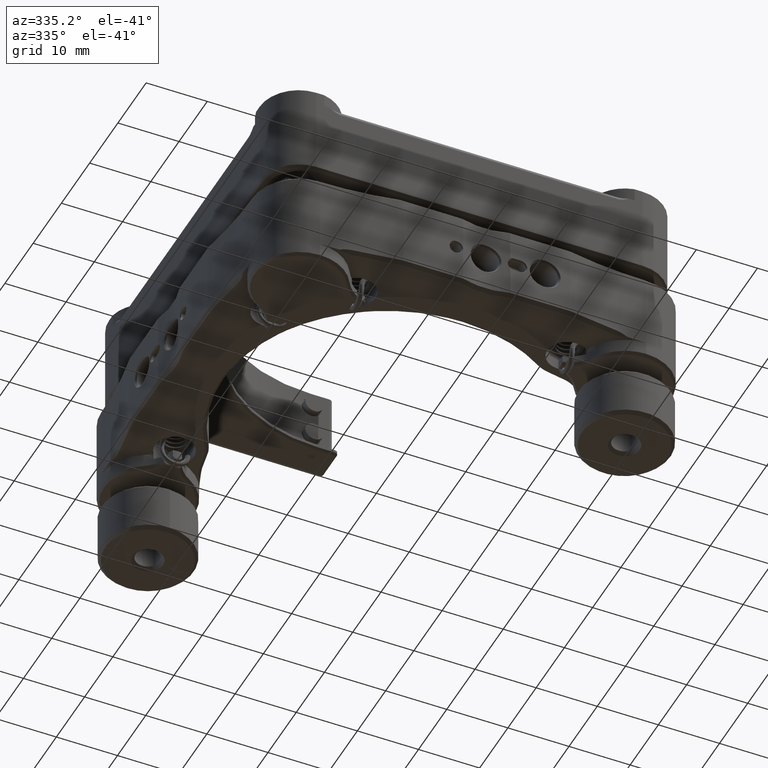
[diagram: clean part render]
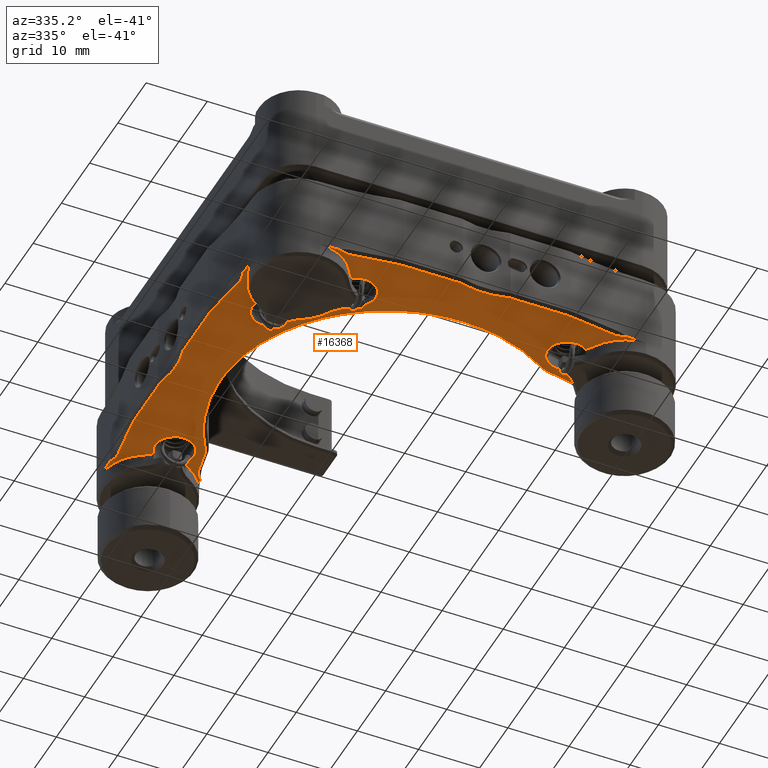
[diagram: same view with one face highlighted and labeled with its STEP entity id]
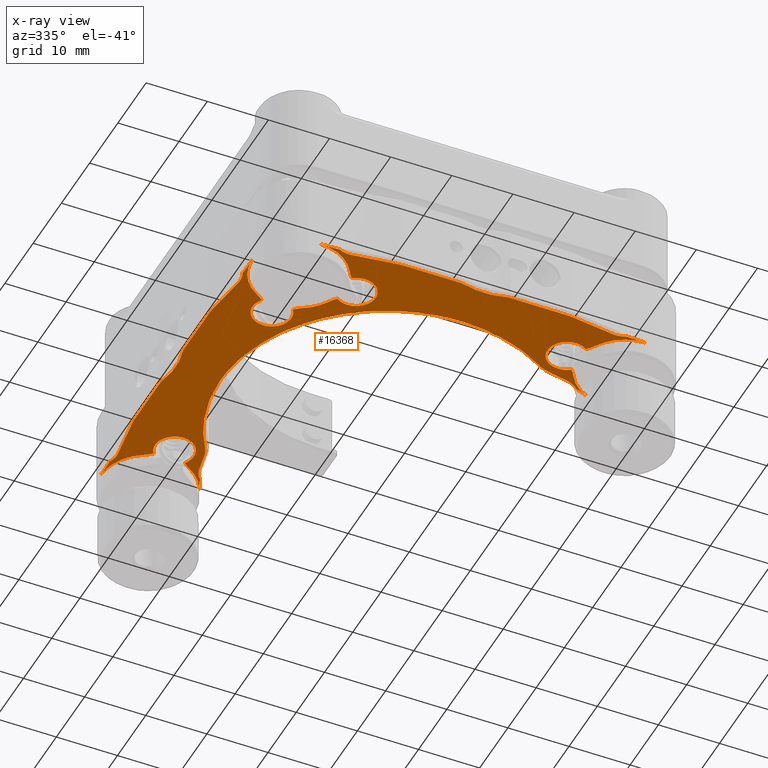
[diagram: x-ray of the same camera — body ghosted, the highlighted face saturated]
A machine part, auxiliary view. The second image highlights one B-rep face of the part: STEP entity #16368.
The next image is the same camera in x-ray: the body ghosted, the highlighted face saturated — about 0% of this face is hidden behind the body in this view.
In plain terms, the highlighted planar face has unit normal (0, 0, -1).
Its self-contained STEP definition (entity closure, byte-faithful):
#22 = CARTESIAN_POINT ( 'NONE',  ( 29.20932605756291522, 5.607159035293775240, 57.64502420018478546 ) ) ;
#63 = ORIENTED_EDGE ( 'NONE', *, *, #18630, .F. ) ;
#174 = ORIENTED_EDGE ( 'NONE', *, *, #26009, .F. ) ;
#183 = CARTESIAN_POINT ( 'NONE',  ( 1.247253498798252869, 59.76045141439296060, 57.64502420018478546 ) ) ;
#191 = CARTESIAN_POINT ( 'NONE',  ( 18.42267675560576379, 14.35657661658440176, 57.64502420018445150 ) ) ;
#210 = CARTESIAN_POINT ( 'NONE',  ( 41.80860765581387994, 18.46373870427559183, 57.64502420018547468 ) ) ;
#220 = CARTESIAN_POINT ( 'NONE',  ( 2.271709062368655108, 26.31930380702672068, 57.64502420018387596 ) ) ;
#249 = CARTESIAN_POINT ( 'NONE',  ( 23.01519654462548203, 13.55479831892947296, 57.64502420018444440 ) ) ;
#332 = ORIENTED_EDGE ( 'NONE', *, *, #6670, .F. ) ;
#364 = AXIS2_PLACEMENT_3D ( 'NONE', #5480, #23414, #21086 ) ;
#382 = VERTEX_POINT ( 'NONE', #651 ) ;
#409 = DIRECTION ( 'NONE',  ( 1.000000000000000000, 5.463695987328818315E-15, 0.000000000000000000 ) ) ;
#411 = CIRCLE ( 'NONE', #16769, 7.619999999999994778 ) ;
#422 = B_SPLINE_CURVE_WITH_KNOTS ( 'NONE', 3,
 ( #20810, #3286, #14260, #787 ),
 .UNSPECIFIED., .F., .F.,
 ( 4, 4 ),
 ( 0.000000000000000000, 1.000000000000000000 ),
 .UNSPECIFIED. ) ;
#502 = CARTESIAN_POINT ( 'NONE',  ( 41.15188617640507118, 18.29495510135035730, 57.64502420018547468 ) ) ;
#515 = ORIENTED_EDGE ( 'NONE', *, *, #18297, .F. ) ;
#566 = ORIENTED_EDGE ( 'NONE', *, *, #7156, .F. ) ;
#579 = ORIENTED_EDGE ( 'NONE', *, *, #19916, .T. ) ;
#594 = ORIENTED_EDGE ( 'NONE', *, *, #14093, .F. ) ;
#608 = CARTESIAN_POINT ( 'NONE',  ( 11.06662614743122042, 17.52438672522157859, 57.64502420018457940 ) ) ;
#610 = CARTESIAN_POINT ( 'NONE',  ( 6.159207016790204214, 21.41188470218266460, 57.64502420018469309 ) ) ;
#641 = CARTESIAN_POINT ( 'NONE',  ( 12.45368231089481625, 16.72019954103432937, 57.64502420018383333 ) ) ;
#651 = CARTESIAN_POINT ( 'NONE',  ( -0.8961010533956003110, 33.67535443061053968, 57.64502420018387596 ) ) ;
#671 = DIRECTION ( 'NONE',  ( -0.000000000000000000, -0.000000000000000000, 1.000000000000000000 ) ) ;
#738 = AXIS2_PLACEMENT_3D ( 'NONE', #21019, #25830, #28187 ) ;
#757 = EDGE_CURVE ( 'NONE', #27535, #23636, #26119, .T. ) ;
#787 = CARTESIAN_POINT ( 'NONE',  ( -0.8961010533956003110, 33.67535443061053968, 57.64502420018387596 ) ) ;
#839 = VERTEX_POINT ( 'NONE', #1777 ) ;
#850 = CARTESIAN_POINT ( 'NONE',  ( -1.800469016123518173, 40.71486606327052016, 57.64502420018478546 ) ) ;
#872 = VERTEX_POINT ( 'NONE', #23677 ) ;
#885 = VERTEX_POINT ( 'NONE', #8221 ) ;
#919 = CARTESIAN_POINT ( 'NONE',  ( -9.666593367183981655, 36.69342783072483627, 57.64502420018481388 ) ) ;
#920 = CARTESIAN_POINT ( 'NONE',  ( -8.609718291053971129, 19.12635990210234382, 57.64502420018481388 ) ) ;
#953 = ORIENTED_EDGE ( 'NONE', *, *, #24846, .T. ) ;
#1015 = VERTEX_POINT ( 'NONE', #26118 ) ;
#1042 = CARTESIAN_POINT ( 'NONE',  ( 11.07236084597689185, 17.52083115715991113, 57.64502420018457940 ) ) ;
#1045 = ORIENTED_EDGE ( 'NONE', *, *, #27636, .T. ) ;
#1051 = CARTESIAN_POINT ( 'NONE',  ( 0.1792902153727529702, 30.31354821920911746, 57.64502420018480677 ) ) ;
#1062 = ORIENTED_EDGE ( 'NONE', *, *, #19610, .F. ) ;
#1066 = CARTESIAN_POINT ( 'NONE',  ( -9.085511657690688025, 41.04110487605755253, 57.64502420018477835 ) ) ;
#1107 = CIRCLE ( 'NONE', #17453, 64.13500000000001933 ) ;
#1148 = ORIENTED_EDGE ( 'NONE', *, *, #26817, .F. ) ;
#1365 = CARTESIAN_POINT ( 'NONE',  ( -8.748839351660746999, 20.71804460705886797, 57.64502420018482098 ) ) ;
#1380 = VERTEX_POINT ( 'NONE', #5510 ) ;
#1385 = LINE ( 'NONE', #28128, #8686 ) ;
#1390 = CIRCLE ( 'NONE', #15862, 6.476999999999996760 ) ;
#1458 = DIRECTION ( 'NONE',  ( 0.000000000000000000, 0.000000000000000000, 1.000000000000000000 ) ) ;
#1532 = DIRECTION ( 'NONE',  ( -1.000000000000000000, 7.328974598802201501E-16, 0.000000000000000000 ) ) ;
#1568 = B_SPLINE_CURVE_WITH_KNOTS ( 'NONE', 3,
 ( #6817, #22441, #2438, #17933, #11206, #19974, #11351, #17639, #20120 ),
 .UNSPECIFIED., .F., .F.,
 ( 4, 1, 1, 1, 1, 1, 4 ),
 ( 0.7340110189129528395, 0.7692993351809461755, 0.8193335055059760563, 0.8675875624795856833, 0.9138011198508414479, 0.9579550069056105288, 1.000000000000000000 ),
 .UNSPECIFIED. ) ;
#1574 = CIRCLE ( 'NONE', #12775, 3.175000000000001155 ) ;
#1585 = CARTESIAN_POINT ( 'NONE',  ( 20.09387499736017446, 13.97012803118310664, 57.64502420018444440 ) ) ;
#1632 = CARTESIAN_POINT ( 'NONE',  ( -9.651123059185275466, 44.48221405318272303, 57.64502420018478546 ) ) ;
#1712 = EDGE_CURVE ( 'NONE', #17783, #26576, #18417, .T. ) ;
#1714 = CARTESIAN_POINT ( 'NONE',  ( -3.834115845010154455, 21.49804157573462149, 57.64502420018478546 ) ) ;
#1715 = CARTESIAN_POINT ( 'NONE',  ( -9.650481331953596253, 26.68412962258802423, 57.64502420018480677 ) ) ;
#1716 = VERTEX_POINT ( 'NONE', #16530 ) ;
#1730 = LINE ( 'NONE', #15457, #6957 ) ;
#1731 = AXIS2_PLACEMENT_3D ( 'NONE', #15867, #11345, #18366 ) ;
#1777 = CARTESIAN_POINT ( 'NONE',  ( 5.320739594792300409, 17.74304684036228608, 57.64502420018478546 ) ) ;
#1782 = CARTESIAN_POINT ( 'NONE',  ( 8.394457792282477016, 6.124222950984907321, 57.64502420018481388 ) ) ;
#1803 = AXIS2_PLACEMENT_3D ( 'NONE', #23443, #18812, #7693 ) ;
#1806 = CARTESIAN_POINT ( 'NONE',  ( 44.50777374622325766, 16.49993116696799333, 57.64502420018478546 ) ) ;
#1875 = EDGE_CURVE ( 'NONE', #5456, #6064, #19466, .T. ) ;
#1923 = DIRECTION ( 'NONE',  ( -0.000000000000000000, -0.000000000000000000, -1.000000000000000000 ) ) ;
#1927 = CARTESIAN_POINT ( 'NONE',  ( -8.609147041904556374, 62.13926204596009484, 57.64502420018478546 ) ) ;
#1949 = CARTESIAN_POINT ( 'NONE',  ( 29.40470555519195983, 5.579862652619775432, 57.64502420018479256 ) ) ;
#1995 = DIRECTION ( 'NONE',  ( 2.931589839520865612E-15, -1.000000000000000000, 0.000000000000000000 ) ) ;
#2046 = CARTESIAN_POINT ( 'NONE',  ( 1.480533270574447391, 27.68231273084641941, 57.64502420018388307 ) ) ;
#2058 = CARTESIAN_POINT ( 'NONE',  ( 3.829872058320898276, 60.38717263593201068, 57.64502420018502704 ) ) ;
#2060 = CARTESIAN_POINT ( 'NONE',  ( -9.299798497048646695, 56.51821258099698753, 57.64502420018479256 ) ) ;
#2076 = ORIENTED_EDGE ( 'NONE', *, *, #2599, .F. ) ;
#2077 = EDGE_CURVE ( 'NONE', #7043, #23669, #3028, .T. ) ;
#2098 = CARTESIAN_POINT ( 'NONE',  ( -1.800469016123518173, 40.71486606327052016, 57.64502420018478546 ) ) ;
#2156 = ORIENTED_EDGE ( 'NONE', *, *, #19607, .T. ) ;
#2225 = CARTESIAN_POINT ( 'NONE',  ( 29.41474904390709355, 5.579793643104881795, 57.64502420018478546 ) ) ;
#2409 = DIRECTION ( 'NONE',  ( -2.276539994720218856E-16, 1.000000000000000000, 0.000000000000000000 ) ) ;
#2421 = VERTEX_POINT ( 'NONE', #12492 ) ;
#2438 = CARTESIAN_POINT ( 'NONE',  ( 27.80663063215838093, 13.52098053113159182, 57.64502420018460782 ) ) ;
#2554 = DIRECTION ( 'NONE',  ( 1.000000000000000000, 0.000000000000000000, 0.000000000000000000 ) ) ;
#2581 = EDGE_CURVE ( 'NONE', #5305, #5031, #4965, .T. ) ;
#2599 = EDGE_CURVE ( 'NONE', #11189, #12068, #1385, .T. ) ;
#2608 = CARTESIAN_POINT ( 'NONE',  ( 38.88250447185101422, 5.579793643104853373, 57.64502420018478546 ) ) ;
#2623 = CIRCLE ( 'NONE', #3084, 3.175000000000004263 ) ;
#2629 = DIRECTION ( 'NONE',  ( -0.000000000000000000, -0.000000000000000000, -1.000000000000000000 ) ) ;
#2669 = EDGE_CURVE ( 'NONE', #22675, #21068, #28859, .T. ) ;
#2670 = VECTOR ( 'NONE', #1995, 1000.000000000000000 ) ;
#2676 = CARTESIAN_POINT ( 'NONE',  ( 29.41474904390709355, 5.579793643104881795, 57.64502420018478546 ) ) ;
#2698 = AXIS2_PLACEMENT_3D ( 'NONE', #26798, #11901, #4760 ) ;
#2706 = CIRCLE ( 'NONE', #10633, 7.619999999999993001 ) ;
#2720 = DIRECTION ( 'NONE',  ( -0.000000000000000000, -0.000000000000000000, -1.000000000000000000 ) ) ;
#2722 = ORIENTED_EDGE ( 'NONE', *, *, #757, .F. ) ;
#2776 = CARTESIAN_POINT ( 'NONE',  ( -9.657136695828894446, 54.50535908619860237, 57.64502420018481388 ) ) ;
#2783 = AXIS2_PLACEMENT_3D ( 'NONE', #22369, #11287, #22519 ) ;
#2784 = CARTESIAN_POINT ( 'NONE',  ( -9.672884025064641733, 27.13046265874715246, 57.64502420018481388 ) ) ;
#2793 = CIRCLE ( 'NONE', #7936, 64.13500000000004775 ) ;
#2876 = VERTEX_POINT ( 'NONE', #22389 ) ;
#2891 = VERTEX_POINT ( 'NONE', #11304 ) ;
#2925 = CARTESIAN_POINT ( 'NONE',  ( 52.04656882689406672, -57.79575350493623631, 57.64502420018478546 ) ) ;
#2974 = B_SPLINE_CURVE_WITH_KNOTS ( 'NONE', 3,
 ( #16453, #15881, #25353, #5372, #24769, #14278, #3156, #12069 ),
 .UNSPECIFIED., .F., .F.,
 ( 4, 1, 1, 1, 1, 4 ),
 ( 0.000000000000000000, 0.2198872060826652097, 0.4399635429378297991, 0.6267342505430961719, 0.8134432903046857621, 1.000000000000000000 ),
 .UNSPECIFIED. ) ;
#2979 = CARTESIAN_POINT ( 'NONE',  ( 18.41022598047356240, 14.35987692840729224, 57.64502420018445861 ) ) ;
#3028 = B_SPLINE_CURVE_WITH_KNOTS ( 'NONE', 3,
 ( #5948, #5662, #23597, #23746, #12666 ),
 .UNSPECIFIED., .F., .F.,
 ( 4, 1, 4 ),
 ( 0.2680423317993361754, 0.2824041856130955486, 0.3080622139402893200 ),
 .UNSPECIFIED. ) ;
#3050 = CARTESIAN_POINT ( 'NONE',  ( 23.01519654462548203, 13.55479831892947296, 57.64502420018444440 ) ) ;
#3062 = CARTESIAN_POINT ( 'NONE',  ( -9.671804099582503866, 54.25477390716874737, 57.64502420018478546 ) ) ;
#3064 = CARTESIAN_POINT ( 'NONE',  ( 38.88250447185101422, 5.579793643104853373, 57.64502420018478546 ) ) ;
#3084 = AXIS2_PLACEMENT_3D ( 'NONE', #6091, #21693, #17041 ) ;
#3090 = CARTESIAN_POINT ( 'NONE',  ( 45.13449496776240721, 19.08254972649088543, 57.64502420018547468 ) ) ;
#3100 = EDGE_CURVE ( 'NONE', #13522, #11638, #21753, .T. ) ;
#3116 = CARTESIAN_POINT ( 'NONE',  ( 45.43239805899587225, 10.17544614976530148, 57.64502420018478546 ) ) ;
#3122 = EDGE_CURVE ( 'NONE', #9014, #26029, #16955, .T. ) ;
#3127 = CARTESIAN_POINT ( 'NONE',  ( -9.128454717184634859, 23.64713546045220838, 57.64502420018481388 ) ) ;
#3134 = ORIENTED_EDGE ( 'NONE', *, *, #9223, .T. ) ;
#3141 = EDGE_CURVE ( 'NONE', #2876, #20452, #22521, .T. ) ;
#3156 = CARTESIAN_POINT ( 'NONE',  ( 3.268258257345075357, 57.47588113324250969, 57.64502420018502704 ) ) ;
#3193 = CARTESIAN_POINT ( 'NONE',  ( 7.523560805770546089, 59.45295454738731422, 57.64502420018478546 ) ) ;
#3232 = CARTESIAN_POINT ( 'NONE',  ( 6.582132801033512948, 20.98891514301634231, 57.64502420018383333 ) ) ;
#3268 = CARTESIAN_POINT ( 'NONE',  ( -9.256243939884109651, 38.46426263397331979, 57.64502420018476414 ) ) ;
#3282 = CARTESIAN_POINT ( 'NONE',  ( 18.17183707876180065, 32.95957636818623371, 57.64502420018478546 ) ) ;
#3286 = CARTESIAN_POINT ( 'NONE',  ( -1.171222304169340145, 34.78500465731856650, 57.64502420018389728 ) ) ;
#3322 = CIRCLE ( 'NONE', #12176, 6.476999999999996760 ) ;
#3416 = CARTESIAN_POINT ( 'NONE',  ( -9.412998950299668266, 43.61847049971955670, 57.64502420018479967 ) ) ;
#3425 = DIRECTION ( 'NONE',  ( 0.000000000000000000, 0.000000000000000000, 1.000000000000000000 ) ) ;
#3435 = CARTESIAN_POINT ( 'NONE',  ( 10.94278474750576180, 6.959215856261566024, 57.64502420018478546 ) ) ;
#3495 = VERTEX_POINT ( 'NONE', #27475 ) ;
#3562 = CARTESIAN_POINT ( 'NONE',  ( -9.565848064803070372, 37.08518600192545023, 57.64502420018482098 ) ) ;
#3587 = CARTESIAN_POINT ( 'NONE',  ( 3.242196827740507548, 57.28081045150592843, 57.64502420018502704 ) ) ;
#3591 = VERTEX_POINT ( 'NONE', #28206 ) ;
#3603 = ORIENTED_EDGE ( 'NONE', *, *, #26159, .T. ) ;
#3648 = VERTEX_POINT ( 'NONE', #3116 ) ;
#3790 = CARTESIAN_POINT ( 'NONE',  ( 20.09334009938887178, 13.97023407075234580, 57.64502420018445861 ) ) ;
#3831 = CARTESIAN_POINT ( 'NONE',  ( -9.670894157486623399, 44.60673613845184349, 57.64502420018478546 ) ) ;
#3842 = VERTEX_POINT ( 'NONE', #24809 ) ;
#3878 = CARTESIAN_POINT ( 'NONE',  ( -4.468431173105932075, 23.40212833792560332, 57.64502420018478546 ) ) ;
#3943 = B_SPLINE_CURVE_WITH_KNOTS ( 'NONE', 3,
 ( #9988, #12180, #3416, #7952, #7515, #1066, #5336, #5613, #3268, #14679, #3562, #8094 ),
 .UNSPECIFIED., .F., .F.,
 ( 4, 1, 1, 1, 1, 1, 1, 1, 1, 4 ),
 ( 0.000000000000000000, 0.1106101391436129511, 0.2226035433377166473, 0.3352617313901610774, 0.4478952688161267348, 0.5601324153085953661, 0.6707768710217467678, 0.7814105279585334962, 0.8913786638332005241, 1.000000000000000000 ),
 .UNSPECIFIED. ) ;
#3950 = CARTESIAN_POINT ( 'NONE',  ( 52.04656882689405961, 13.95924649506379644, 57.64502420018478546 ) ) ;
#3957 = B_SPLINE_CURVE_WITH_KNOTS ( 'NONE', 3,
 ( #3050, #11967, #11685, #18117, #14314 ),
 .UNSPECIFIED., .F., .F.,
 ( 4, 1, 4 ),
 ( 0.6919377860668559643, 0.7175958143869002326, 0.7319576682001913692 ),
 .UNSPECIFIED. ) ;
#3981 = CARTESIAN_POINT ( 'NONE',  ( -9.067366065458656976, 58.01751600416974952, 57.64502420018478546 ) ) ;
#3991 = B_SPLINE_CURVE_WITH_KNOTS ( 'NONE', 3,
 ( #27447, #18413, #20725, #5257, #9347, #25385, #14171, #9630, #11679 ),
 .UNSPECIFIED., .F., .F.,
 ( 4, 1, 1, 1, 1, 1, 4 ),
 ( 0.000000000000000000, 0.1868774987790507991, 0.3734622291714627673, 0.5599289493426382602, 0.7064719893704430875, 0.8531339998458387086, 1.000000000000000000 ),
 .UNSPECIFIED. ) ;
#4037 = DIRECTION ( 'NONE',  ( 0.000000000000000000, 0.000000000000000000, 1.000000000000000000 ) ) ;
#4041 = VERTEX_POINT ( 'NONE', #7442 ) ;
#4048 = VERTEX_POINT ( 'NONE', #4964 ) ;
#4075 = ORIENTED_EDGE ( 'NONE', *, *, #1712, .F. ) ;
#4120 = CARTESIAN_POINT ( 'NONE',  ( 21.40912200082250649, 5.582598167730753680, 57.64502420018481388 ) ) ;
#4171 = CARTESIAN_POINT ( 'NONE',  ( 11.07236084597689185, 17.52083115715991113, 57.64502420018457940 ) ) ;
#4179 = CARTESIAN_POINT ( 'NONE',  ( -8.992042025902165392, 17.13371250086107622, 57.64502420018478546 ) ) ;
#4233 = CARTESIAN_POINT ( 'NONE',  ( -1.293431173105950904, 57.85636465220196101, 57.64502420018478546 ) ) ;
#4257 = B_SPLINE_CURVE_WITH_KNOTS ( 'NONE', 3,
 ( #8354, #25869, #23817, #3831, #21629, #21054, #15069, #1632, #10396, #5739 ),
 .UNSPECIFIED., .F., .F.,
 ( 4, 1, 1, 1, 1, 1, 1, 4 ),
 ( 0.000000000000000000, 0.1409893237882775541, 0.2810121681523586323, 0.4204454693402903120, 0.5596646080508427268, 0.7056909311085819425, 0.8523249852666776594, 1.000000000000000000 ),
 .UNSPECIFIED. ) ;
#4266 = CARTESIAN_POINT ( 'NONE',  ( 21.50204822884585099, 5.596693155254232721, 57.64502420018481388 ) ) ;
#4269 = CARTESIAN_POINT ( 'NONE',  ( 5.465366938889159698, 6.503838316508810280, 57.64502420018480677 ) ) ;
#4288 = ORIENTED_EDGE ( 'NONE', *, *, #13541, .F. ) ;
#4295 = ORIENTED_EDGE ( 'NONE', *, *, #8871, .F. ) ;
#4301 = CARTESIAN_POINT ( 'NONE',  ( 20.19019959098566019, 13.95091022806955827, 57.64502420018475704 ) ) ;
#4322 = ORIENTED_EDGE ( 'NONE', *, *, #24009, .F. ) ;
#4388 = DIRECTION ( 'NONE',  ( 1.000000000000000000, 0.000000000000000000, 0.000000000000000000 ) ) ;
#4446 = DIRECTION ( 'NONE',  ( 1.000000000000000000, 0.000000000000000000, 0.000000000000000000 ) ) ;
#4481 = LINE ( 'NONE', #11055, #2670 ) ;
#4561 = EDGE_CURVE ( 'NONE', #18170, #4041, #2974, .T. ) ;
#4562 = B_SPLINE_CURVE_WITH_KNOTS ( 'NONE', 3,
 ( #13926, #608, #9680, #1042 ),
 .UNSPECIFIED., .F., .F.,
 ( 4, 4 ),
 ( 0.4739071774692080186, 0.4740807235350941173 ),
 .UNSPECIFIED. ) ;
#4576 = CARTESIAN_POINT ( 'NONE',  ( -0.8961010533956003110, 33.67535443061053968, 57.64502420018387596 ) ) ;
#4592 = AXIS2_PLACEMENT_3D ( 'NONE', #17470, #4037, #28726 ) ;
#4669 = CARTESIAN_POINT ( 'NONE',  ( 19.53175575290984867, 14.08159192644378166, 57.64502420018478546 ) ) ;
#4670 = CARTESIAN_POINT ( 'NONE',  ( 1.247253498798294613, 21.49804157573462149, 57.64502420018478546 ) ) ;
#4706 = DIRECTION ( 'NONE',  ( -0.000000000000000000, -0.000000000000000000, -1.000000000000000000 ) ) ;
#4760 = DIRECTION ( 'NONE',  ( 1.000000000000000000, 0.000000000000000000, 0.000000000000000000 ) ) ;
#4796 = CARTESIAN_POINT ( 'NONE',  ( -9.593823589727188406, 54.94774637175455467, 57.64502420018478546 ) ) ;
#4814 = CARTESIAN_POINT ( 'NONE',  ( -3.834115845010161561, 59.76045141439295350, 57.64502420018478546 ) ) ;
#4842 = CARTESIAN_POINT ( 'NONE',  ( -9.642387603106660876, 54.64659585221734517, 57.64502420018465045 ) ) ;
#4877 = VERTEX_POINT ( 'NONE', #9425 ) ;
#4896 = DIRECTION ( 'NONE',  ( 0.1592391472459123158, 0.9872400386858277699, 4.917326388595624016E-14 ) ) ;
#4941 = CARTESIAN_POINT ( 'NONE',  ( 6.119117317128018207, 21.45203299883538506, 57.64502420018469309 ) ) ;
#4956 = CIRCLE ( 'NONE', #738, 3.175000000000001155 ) ;
#4964 = CARTESIAN_POINT ( 'NONE',  ( 4.900258537467380826, 62.21599367290031779, 57.64502420018501994 ) ) ;
#4965 = CIRCLE ( 'NONE', #27338, 6.476999999999996760 ) ;
#4989 = CARTESIAN_POINT ( 'NONE',  ( 47.19090729381271387, 2.845703936856604166, 57.64502420018478546 ) ) ;
#5031 = VERTEX_POINT ( 'NONE', #21083 ) ;
#5033 = B_SPLINE_CURVE_WITH_KNOTS ( 'NONE', 3,
 ( #5660, #14581, #23596, #5947, #10600 ),
 .UNSPECIFIED., .F., .F.,
 ( 4, 1, 4 ),
 ( 0.000000000000000000, 0.03659911153395067201, 1.000000000000000000 ),
 .UNSPECIFIED. ) ;
#5104 = EDGE_CURVE ( 'NONE', #22520, #1380, #26231, .T. ) ;
#5125 = B_SPLINE_CURVE_WITH_KNOTS ( 'NONE', 3,
 ( #13720, #18253, #27149, #7140, #1715, #12683, #25669, #10183, #19128 ),
 .UNSPECIFIED., .F., .F.,
 ( 4, 1, 1, 1, 1, 1, 4 ),
 ( 0.000000000000000000, 0.1868774987790021713, 0.3734622291713883824, 0.5599289493427320741, 0.7064719893703814702, 0.8531339998458348228, 1.000000000000000000 ),
 .UNSPECIFIED. ) ;
#5257 = CARTESIAN_POINT ( 'NONE',  ( 11.57290411365522154, 5.589680487915936524, 57.64502420018481388 ) ) ;
#5276 = CARTESIAN_POINT ( 'NONE',  ( 39.00209623899901601, 5.580873568587163547, 57.64502420018478546 ) ) ;
#5280 = DIRECTION ( 'NONE',  ( -1.000000000000000000, 0.000000000000000000, 0.000000000000000000 ) ) ;
#5305 = VERTEX_POINT ( 'NONE', #24842 ) ;
#5336 = CARTESIAN_POINT ( 'NONE',  ( -9.087351413154882707, 40.16723961050244185, 57.64502420018475704 ) ) ;
#5372 = CARTESIAN_POINT ( 'NONE',  ( 3.529182994803266471, 59.06424076650954191, 57.64502420018502704 ) ) ;
#5380 = B_SPLINE_CURVE_WITH_KNOTS ( 'NONE', 3,
 ( #18725, #11844, #20742, #18571, #7460, #25260, #5276, #27613, #3064 ),
 .UNSPECIFIED., .F., .F.,
 ( 4, 1, 1, 1, 1, 1, 4 ),
 ( 0.000000000000000000, 0.1868774987789966757, 0.3734622291714109754, 0.5599289493427193065, 0.7064719893703580444, 0.8531339998458139506, 1.000000000000000000 ),
 .UNSPECIFIED. ) ;
#5418 = CARTESIAN_POINT ( 'NONE',  ( -9.672523883164220848, 54.17506452729737276, 57.64502420018478546 ) ) ;
#5434 = B_SPLINE_CURVE_WITH_KNOTS ( 'NONE', 3,
 ( #18431, #25400, #27323, #4842, #2776, #7314, #3062, #5418, #13753 ),
 .UNSPECIFIED., .F., .F.,
 ( 4, 1, 1, 1, 1, 1, 4 ),
 ( 0.000000000000000000, 0.1868774987789336428, 0.3734622291715745113, 0.5599289493427238584, 0.7064719893704285436, 0.8531339998458720153, 1.000000000000000000 ),
 .UNSPECIFIED. ) ;
#5456 = VERTEX_POINT ( 'NONE', #14071 ) ;
#5480 = CARTESIAN_POINT ( 'NONE',  ( -1.293431173105919596, 13.95924649506378401, 57.64502420018478546 ) ) ;
#5510 = CARTESIAN_POINT ( 'NONE',  ( 6.245363907564912331, 16.49993116696801110, 57.64502420018478546 ) ) ;
#5546 = AXIS2_PLACEMENT_3D ( 'NONE', #24611, #2720, #7116 ) ;
#5597 = CARTESIAN_POINT ( 'NONE',  ( 25.37656882689406501, 17.26124649506379782, 57.64502420018478546 ) ) ;
#5613 = CARTESIAN_POINT ( 'NONE',  ( -9.144959195670095298, 39.30898020209799881, 57.64502420018483519 ) ) ;
#5629 = ORIENTED_EDGE ( 'NONE', *, *, #28331, .F. ) ;
#5660 = CARTESIAN_POINT ( 'NONE',  ( 1.480533270574447391, 27.68231273084641941, 57.64502420018388307 ) ) ;
#5662 = CARTESIAN_POINT ( 'NONE',  ( -1.800086855599971836, 40.31615765711513433, 57.64502420018396833 ) ) ;
#5695 = CARTESIAN_POINT ( 'NONE',  ( 20.09414244750162482, 13.97007501743767754, 57.64502420018445861 ) ) ;
#5739 = CARTESIAN_POINT ( 'NONE',  ( -9.642706508394164544, 44.45186282040749859, 57.64502420018478546 ) ) ;
#5741 = CARTESIAN_POINT ( 'NONE',  ( -9.642706508394164544, 44.45186282040749859, 57.64502420018478546 ) ) ;
#5746 = ORIENTED_EDGE ( 'NONE', *, *, #5104, .F. ) ;
#5787 = CARTESIAN_POINT ( 'NONE',  ( 2.666694550821260723, 55.56710226179581014, 57.64502420018503415 ) ) ;
#5854 = CARTESIAN_POINT ( 'NONE',  ( -1.293431173105943799, 67.29924649506376966, 57.64502420018478546 ) ) ;
#5871 = CARTESIAN_POINT ( 'NONE',  ( 45.53599877799367590, 6.527100479283238776, 57.64502420018478546 ) ) ;
#5875 = EDGE_CURVE ( 'NONE', #18897, #7712, #7509, .T. ) ;
#5908 = CARTESIAN_POINT ( 'NONE',  ( 6.099119293202784675, 21.47215444368374904, 57.64502420018469309 ) ) ;
#5925 = CARTESIAN_POINT ( 'NONE',  ( 21.12889029488698256, 13.76860078543209021, 57.64502420018477125 ) ) ;
#5947 = CARTESIAN_POINT ( 'NONE',  ( 2.002679229017504614, 26.75330528928877882, 57.64502420018387596 ) ) ;
#5948 = CARTESIAN_POINT ( 'NONE',  ( -1.800537350598218511, 40.59518225433834004, 57.64502420018478546 ) ) ;
#5985 = ORIENTED_EDGE ( 'NONE', *, *, #9079, .F. ) ;
#6032 = CARTESIAN_POINT ( 'NONE',  ( 21.55116001251969493, 5.609217116684973803, 57.64502420018481388 ) ) ;
#6043 = EDGE_CURVE ( 'NONE', #5031, #22520, #18749, .T. ) ;
#6064 = VERTEX_POINT ( 'NONE', #18820 ) ;
#6074 = CARTESIAN_POINT ( 'NONE',  ( 2.587008299195336924, 55.43959795470530594, 57.64502420018502704 ) ) ;
#6091 = CARTESIAN_POINT ( 'NONE',  ( 42.60368698403224386, 13.95924649506378934, 57.64502420018478546 ) ) ;
#6104 = ORIENTED_EDGE ( 'NONE', *, *, #15217, .F. ) ;
#6170 = CARTESIAN_POINT ( 'NONE',  ( 43.81156309834000240, 18.78186066297325851, 57.64502420018547468 ) ) ;
#6187 = CARTESIAN_POINT ( 'NONE',  ( 21.34554041852130624, 5.579793643104916434, 57.64502420018481388 ) ) ;
#6231 = EDGE_CURVE ( 'NONE', #8914, #18909, #5033, .T. ) ;
#6272 = DIRECTION ( 'NONE',  ( 1.000000000000000000, 0.000000000000000000, 0.000000000000000000 ) ) ;
#6368 = AXIS2_PLACEMENT_3D ( 'NONE', #16328, #22750, #22897 ) ;
#6600 = CARTESIAN_POINT ( 'NONE',  ( -8.877765791340680224, 59.44149317794403231, 57.64502420018478546 ) ) ;
#6638 = DIRECTION ( 'NONE',  ( 1.000000000000000000, -4.262764790113739972E-14, 0.000000000000000000 ) ) ;
#6658 = ORIENTED_EDGE ( 'NONE', *, *, #22612, .F. ) ;
#6670 = EDGE_CURVE ( 'NONE', #18982, #18677, #28362, .T. ) ;
#6726 = ORIENTED_EDGE ( 'NONE', *, *, #15824, .F. ) ;
#6775 = VERTEX_POINT ( 'NONE', #5908 ) ;
#6817 = CARTESIAN_POINT ( 'NONE',  ( 25.46218839513225163, 13.45220865204719729, 57.64502420018449413 ) ) ;
#6831 = CARTESIAN_POINT ( 'NONE',  ( 11.87778499057743886, 5.579793643104922651, 57.64502420018481388 ) ) ;
#6844 = AXIS2_PLACEMENT_3D ( 'NONE', #7897, #12854, #21744 ) ;
#6862 = CARTESIAN_POINT ( 'NONE',  ( 44.50777374622325055, 11.41856182315958357, 57.64502420018478546 ) ) ;
#6957 = VECTOR ( 'NONE', #15308, 1000.000000000000000 ) ;
#7027 = B_SPLINE_CURVE_WITH_KNOTS ( 'NONE', 3,
 ( #15349, #15493, #28515, #15632 ),
 .UNSPECIFIED., .F., .F.,
 ( 4, 4 ),
 ( 0.5009846601953978906, 0.5014532947223855341 ),
 .UNSPECIFIED. ) ;
#7043 = VERTEX_POINT ( 'NONE', #8831 ) ;
#7116 = DIRECTION ( 'NONE',  ( -1.000000000000000000, 0.000000000000000000, 0.000000000000000000 ) ) ;
#7140 = CARTESIAN_POINT ( 'NONE',  ( -9.662997180253642071, 26.82558178182478770, 57.64502420018484230 ) ) ;
#7156 = EDGE_CURVE ( 'NONE', #18677, #27309, #10188, .T. ) ;
#7227 = DIRECTION ( 'NONE',  ( -0.000000000000000000, -0.000000000000000000, -1.000000000000000000 ) ) ;
#7233 = CARTESIAN_POINT ( 'NONE',  ( 41.36965465936735598, 18.36221676270102421, 57.64502420018548179 ) ) ;
#7314 = CARTESIAN_POINT ( 'NONE',  ( -9.666417621515062564, 54.37467780181496835, 57.64502420018477835 ) ) ;
#7336 = CARTESIAN_POINT ( 'NONE',  ( 10.67164741292392449, 17.76934267453778205, 57.64502420018376938 ) ) ;
#7339 = ORIENTED_EDGE ( 'NONE', *, *, #24671, .T. ) ;
#7341 = VECTOR ( 'NONE', #18868, 1000.000000000000000 ) ;
#7364 = CIRCLE ( 'NONE', #12972, 3.175000000000001155 ) ;
#7442 = CARTESIAN_POINT ( 'NONE',  ( 3.242196827740507548, 57.28081045150592843, 57.64502420018502704 ) ) ;
#7460 = CARTESIAN_POINT ( 'NONE',  ( 39.25268141802906285, 5.595540972340787178, 57.64502420018478546 ) ) ;
#7509 = CIRCLE ( 'NONE', #24752, 3.175000000000004263 ) ;
#7515 = CARTESIAN_POINT ( 'NONE',  ( -9.140801989087320223, 41.91036909226360763, 57.64502420018479256 ) ) ;
#7609 = CARTESIAN_POINT ( 'NONE',  ( -1.293431173105943799, 67.29924649506376966, 57.64502420018478546 ) ) ;
#7625 = CARTESIAN_POINT ( 'NONE',  ( 11.06375930711444866, 17.52616530329627764, 57.64502420018457940 ) ) ;
#7693 = DIRECTION ( 'NONE',  ( 0.9872400386858272148, 0.1592391472459154800, 4.917326388595623385E-14 ) ) ;
#7709 = EDGE_CURVE ( 'NONE', #24012, #17976, #21186, .T. ) ;
#7712 = VERTEX_POINT ( 'NONE', #18231 ) ;
#7778 = ORIENTED_EDGE ( 'NONE', *, *, #9189, .F. ) ;
#7785 = CIRCLE ( 'NONE', #6368, 6.476999999999996760 ) ;
#7789 = CARTESIAN_POINT ( 'NONE',  ( 1.463761941081966000, 27.71331414550069638, 57.64502420018471440 ) ) ;
#7795 = ORIENTED_EDGE ( 'NONE', *, *, #24306, .F. ) ;
#7866 = CIRCLE ( 'NONE', #2698, 25.52699999999999392 ) ;
#7897 = CARTESIAN_POINT ( 'NONE',  ( -8.293461811908157344, 55.06303057445210669, 57.64502420018478546 ) ) ;
#7936 = AXIS2_PLACEMENT_3D ( 'NONE', #9171, #26269, #6272 ) ;
#7952 = CARTESIAN_POINT ( 'NONE',  ( -9.252141598828078628, 42.77075044553852479, 57.64502420018477125 ) ) ;
#7969 = EDGE_CURVE ( 'NONE', #7712, #10835, #2623, .T. ) ;
#8041 = VERTEX_POINT ( 'NONE', #23592 ) ;
#8094 = CARTESIAN_POINT ( 'NONE',  ( -9.640677914610106924, 36.81348824336258474, 57.64502420018481388 ) ) ;
#8107 = CARTESIAN_POINT ( 'NONE',  ( 18.41022598047356240, 14.35987692840729224, 57.64502420018445861 ) ) ;
#8139 = AXIS2_PLACEMENT_3D ( 'NONE', #11308, #13499, #19801 ) ;
#8154 = EDGE_CURVE ( 'NONE', #3495, #13522, #22322, .T. ) ;
#8221 = CARTESIAN_POINT ( 'NONE',  ( 42.02813278333636049, 18.49487449591047294, 57.64502420018547468 ) ) ;
#8223 = CARTESIAN_POINT ( 'NONE',  ( 21.53192504161678400, 5.603670917864491230, 57.64502420018481388 ) ) ;
#8315 = EDGE_CURVE ( 'NONE', #9894, #20452, #15210, .T. ) ;
#8344 = EDGE_CURVE ( 'NONE', #11589, #13939, #12251, .T. ) ;
#8354 = CARTESIAN_POINT ( 'NONE',  ( -9.672884025064794500, 44.66742671207680360, 57.64502420018478546 ) ) ;
#8366 = CARTESIAN_POINT ( 'NONE',  ( 10.62111259871217683, 5.741155578295950690, 57.64502420018481388 ) ) ;
#8379 = DIRECTION ( 'NONE',  ( 1.000000000000000000, 0.000000000000000000, 0.000000000000000000 ) ) ;
#8385 = CARTESIAN_POINT ( 'NONE',  ( 52.04656882689405251, 6.339246495063802556, 57.64502420018478546 ) ) ;
#8447 = CARTESIAN_POINT ( 'NONE',  ( 11.06375930711444866, 17.52616530329627764, 57.64502420018457940 ) ) ;
#8461 = ORIENTED_EDGE ( 'NONE', *, *, #20298, .F. ) ;
#8474 = CARTESIAN_POINT ( 'NONE',  ( 20.09334009938887178, 13.97023407075234580, 57.64502420018445861 ) ) ;
#8506 = CARTESIAN_POINT ( 'NONE',  ( -8.647950764258148126, 61.68914023483319653, 57.64502420018478546 ) ) ;
#8518 = B_SPLINE_CURVE_WITH_KNOTS ( 'NONE', 3,
 ( #14318, #14757, #23630, #9779, #12544, #23070, #27603, #21446, #850 ),
 .UNSPECIFIED., .F., .F.,
 ( 4, 1, 1, 1, 1, 1, 4 ),
 ( 0.000000000000000000, 0.04204499309438813892, 0.08619888014915744190, 0.1324124375204127624, 0.1806664944940222783, 0.2307006648190521592, 0.2659889810875761262 ),
 .UNSPECIFIED. ) ;
#8532 = ORIENTED_EDGE ( 'NONE', *, *, #3141, .F. ) ;
#8541 = DIRECTION ( 'NONE',  ( -1.000000000000000000, 0.000000000000000000, 0.000000000000000000 ) ) ;
#8574 = CARTESIAN_POINT ( 'NONE',  ( 2.269931010862548781, 26.32217099109459113, 57.64502420018387596 ) ) ;
#8630 = CARTESIAN_POINT ( 'NONE',  ( 44.45835949249649133, 18.91711043620859201, 57.64502420018548179 ) ) ;
#8641 = CARTESIAN_POINT ( 'NONE',  ( 3.873682233932616015, 6.642959377115606578, 57.64502420018481388 ) ) ;
#8663 = ORIENTED_EDGE ( 'NONE', *, *, #6043, .F. ) ;
#8675 = CARTESIAN_POINT ( 'NONE',  ( 23.01519654462548203, 13.55479831892947296, 57.64502420018444440 ) ) ;
#8686 = VECTOR ( 'NONE', #1532, 1000.000000000000000 ) ;
#8694 = CARTESIAN_POINT ( 'NONE',  ( 25.35385932670376263, 13.45184229398588016, 57.64502420018478546 ) ) ;
#8764 = CARTESIAN_POINT ( 'NONE',  ( 25.78842720788783893, 6.167166010478918103, 57.64502420018477125 ) ) ;
#8801 = CARTESIAN_POINT ( 'NONE',  ( 29.26095084496983389, 5.594625731543699132, 57.64502420018477835 ) ) ;
#8831 = CARTESIAN_POINT ( 'NONE',  ( -1.800537350598218511, 40.59518225433834004, 57.64502420018478546 ) ) ;
#8871 = EDGE_CURVE ( 'NONE', #24854, #18982, #7027, .T. ) ;
#8885 = CARTESIAN_POINT ( 'NONE',  ( 42.76483833599998263, 6.185311602711067280, 57.64502420018478546 ) ) ;
#8914 = VERTEX_POINT ( 'NONE', #2046 ) ;
#8936 = CARTESIAN_POINT ( 'NONE',  ( -9.672884025064821145, 54.13518214002072426, 57.64502420018478546 ) ) ;
#8957 = B_SPLINE_CURVE_WITH_KNOTS ( 'NONE', 3,
 ( #19830, #8574, #220, #9147 ),
 .UNSPECIFIED., .F., .F.,
 ( 4, 4 ),
 ( 0.5259192764612705684, 0.5260928227920932398 ),
 .UNSPECIFIED. ) ;
#8964 = CARTESIAN_POINT ( 'NONE',  ( -0.8928007394753307846, 33.66290364755678155, 57.64502420018476414 ) ) ;
#8966 = EDGE_CURVE ( 'NONE', #6775, #16038, #16071, .T. ) ;
#9004 = CARTESIAN_POINT ( 'NONE',  ( 40.93613138769142523, 18.21665923213716454, 57.64502420018547468 ) ) ;
#9013 = CARTESIAN_POINT ( 'NONE',  ( 1.471854880755795847, 27.69834201001848939, 57.64502420018387596 ) ) ;
#9014 = VERTEX_POINT ( 'NONE', #9357 ) ;
#9079 = EDGE_CURVE ( 'NONE', #25992, #9316, #4956, .T. ) ;
#9147 = CARTESIAN_POINT ( 'NONE',  ( 2.273487643159314953, 26.31643696233417273, 57.64502420018470019 ) ) ;
#9157 = B_SPLINE_CURVE_WITH_KNOTS ( 'NONE', 3,
 ( #19812, #15414, #22257, #4171 ),
 .UNSPECIFIED., .F., .F.,
 ( 4, 4 ),
 ( 0.000000000000000000, 1.000000000000000000 ),
 .UNSPECIFIED. ) ;
#9171 = CARTESIAN_POINT ( 'NONE',  ( -73.04843117310595346, 13.95924649506372717, 57.64502420018478546 ) ) ;
#9189 = EDGE_CURVE ( 'NONE', #10094, #23483, #8518, .T. ) ;
#9223 = EDGE_CURVE ( 'NONE', #24392, #3842, #10551, .T. ) ;
#9308 = ORIENTED_EDGE ( 'NONE', *, *, #18352, .T. ) ;
#9315 = CIRCLE ( 'NONE', #2783, 3.175000000000001155 ) ;
#9316 = VERTEX_POINT ( 'NONE', #26544 ) ;
#9332 = DIRECTION ( 'NONE',  ( 1.000000000000000000, 0.000000000000000000, 0.000000000000000000 ) ) ;
#9347 = CARTESIAN_POINT ( 'NONE',  ( 11.43145195441805484, 5.602196336215982342, 57.64502420018482098 ) ) ;
#9357 = CARTESIAN_POINT ( 'NONE',  ( -0.8928007394753307846, 33.66290364755678155, 57.64502420018476414 ) ) ;
#9425 = CARTESIAN_POINT ( 'NONE',  ( 5.686685992947481338, 64.24271834237710266, 57.64502420018478546 ) ) ;
#9478 = CARTESIAN_POINT ( 'NONE',  ( -1.282441711732511980, 35.34600825593507523, 57.64502420018389728 ) ) ;
#9524 = CARTESIAN_POINT ( 'NONE',  ( 9.422314921747766192, 18.58877694445848405, 57.64502420018391859 ) ) ;
#9545 = B_SPLINE_CURVE_WITH_KNOTS ( 'NONE', 3,
 ( #2225, #1949, #26615, #17433, #10857, #28828, #8801, #26338, #22, #24128 ),
 .UNSPECIFIED., .F., .F.,
 ( 4, 1, 1, 1, 1, 1, 1, 4 ),
 ( 0.000000000000000000, 0.1409893237884437267, 0.2810121681523583548, 0.4204454693402984722, 0.5596646080510984111, 0.7056909311083782166, 0.8523249852666745507, 1.000000000000000000 ),
 .UNSPECIFIED. ) ;
#9585 = ORIENTED_EDGE ( 'NONE', *, *, #15017, .F. ) ;
#9630 = CARTESIAN_POINT ( 'NONE',  ( 11.10430498639274965, 5.650218440352107407, 57.64502420018481388 ) ) ;
#9669 = VERTEX_POINT ( 'NONE', #8385 ) ;
#9680 = CARTESIAN_POINT ( 'NONE',  ( 11.06949332712253486, 17.52260867643064302, 57.64502420018457940 ) ) ;
#9699 = CARTESIAN_POINT ( 'NONE',  ( 18.41437592308295734, 14.35877584928596740, 57.64502420018445150 ) ) ;
#9737 = ORIENTED_EDGE ( 'NONE', *, *, #15106, .T. ) ;
#9745 = DIRECTION ( 'NONE',  ( 0.000000000000000000, 0.000000000000000000, 1.000000000000000000 ) ) ;
#9779 = CARTESIAN_POINT ( 'NONE',  ( 0.1743140264073607393, 50.90784603974384481, 57.64502420018456519 ) ) ;
#9789 = EDGE_CURVE ( 'NONE', #382, #9014, #25935, .T. ) ;
#9796 = LINE ( 'NONE', #16219, #7341 ) ;
#9833 = CARTESIAN_POINT ( 'NONE',  ( -0.5247156867573099515, 32.32737411860692589, 57.64502420018477125 ) ) ;
#9850 = EDGE_CURVE ( 'NONE', #17705, #16884, #9545, .T. ) ;
#9894 = VERTEX_POINT ( 'NONE', #19649 ) ;
#9947 = EDGE_CURVE ( 'NONE', #19171, #26223, #1574, .T. ) ;
#9988 = CARTESIAN_POINT ( 'NONE',  ( -9.642706508394164544, 44.45186282040749859, 57.64502420018478546 ) ) ;
#10040 = CARTESIAN_POINT ( 'NONE',  ( -1.801133273645112665, 40.61789174497732091, 57.64502420018478546 ) ) ;
#10091 = CARTESIAN_POINT ( 'NONE',  ( 7.774811050685291214, 19.87225314642604346, 57.64502420018383333 ) ) ;
#10094 = VERTEX_POINT ( 'NONE', #23159 ) ;
#10183 = CARTESIAN_POINT ( 'NONE',  ( -9.602459227817456977, 26.35698265456250411, 57.64502420018481388 ) ) ;
#10188 = B_SPLINE_CURVE_WITH_KNOTS ( 'NONE', 3,
 ( #2979, #9699, #18625, #27521 ),
 .UNSPECIFIED., .F., .F.,
 ( 4, 4 ),
 ( 0.6116861551294725530, 0.6119070631454767151 ),
 .UNSPECIFIED. ) ;
#10272 = CARTESIAN_POINT ( 'NONE',  ( -9.640677914610106924, 36.81348824336258474, 57.64502420018481388 ) ) ;
#10276 = CARTESIAN_POINT ( 'NONE',  ( -8.656084014187115372, 19.65683035728289951, 57.64502420018481388 ) ) ;
#10377 = DIRECTION ( 'NONE',  ( 0.000000000000000000, 0.000000000000000000, 1.000000000000000000 ) ) ;
#10396 = CARTESIAN_POINT ( 'NONE',  ( -9.645518632875871745, 44.46200372573264303, 57.64502420018478546 ) ) ;
#10445 = CARTESIAN_POINT ( 'NONE',  ( 2.963981563967196919, 56.18880905586105001, 57.64502420018502704 ) ) ;
#10537 = CARTESIAN_POINT ( 'NONE',  ( -8.991669279272381132, 64.13231096103351092, 57.64502420018478546 ) ) ;
#10551 = CIRCLE ( 'NONE', #21281, 3.810000000000039133 ) ;
#10556 = CARTESIAN_POINT ( 'NONE',  ( 8.149450669755891496, 13.95924649506378579, 57.64502420018478546 ) ) ;
#10581 = B_SPLINE_CURVE_WITH_KNOTS ( 'NONE', 3,
 ( #8474, #4669, #13577, #10659 ),
 .UNSPECIFIED., .F., .F.,
 ( 4, 4 ),
 ( 0.000000000000000000, 1.000000000000000000 ),
 .UNSPECIFIED. ) ;
#10600 = CARTESIAN_POINT ( 'NONE',  ( 2.268153488878262625, 26.32503851432653619, 57.64502420018387596 ) ) ;
#10633 = AXIS2_PLACEMENT_3D ( 'NONE', #5854, #10377, #21170 ) ;
#10659 = CARTESIAN_POINT ( 'NONE',  ( 18.42267675560576379, 14.35657661658440176, 57.64502420018445150 ) ) ;
#10683 = CARTESIAN_POINT ( 'NONE',  ( 28.36579283154982534, 5.839678717869952074, 57.64502420018478546 ) ) ;
#10691 = CARTESIAN_POINT ( 'NONE',  ( -8.725577188886449065, 60.78867644616341437, 57.64502420018478546 ) ) ;
#10795 = EDGE_CURVE ( 'NONE', #22894, #1716, #12437, .T. ) ;
#10827 = CARTESIAN_POINT ( 'NONE',  ( 28.92254092842899027, 5.686222485273166427, 57.64502420018478546 ) ) ;
#10835 = VERTEX_POINT ( 'NONE', #6862 ) ;
#10844 = EDGE_CURVE ( 'NONE', #12068, #2876, #3991, .T. ) ;
#10857 = CARTESIAN_POINT ( 'NONE',  ( 29.32338050284561959, 5.584730003543807442, 57.64502420018478546 ) ) ;
#10860 = ORIENTED_EDGE ( 'NONE', *, *, #14412, .T. ) ;
#10946 = ORIENTED_EDGE ( 'NONE', *, *, #13122, .F. ) ;
#11032 = CARTESIAN_POINT ( 'NONE',  ( 25.34250458614259927, 13.45214031757250162, 57.64502420018448703 ) ) ;
#11055 = CARTESIAN_POINT ( 'NONE',  ( -9.672884025064806934, 49.40130442604876038, 57.64502420018478546 ) ) ;
#11086 = DIRECTION ( 'NONE',  ( -0.000000000000000000, -0.000000000000000000, 1.000000000000000000 ) ) ;
#11102 = CIRCLE ( 'NONE', #28841, 6.476999999999996760 ) ;
#11174 = AXIS2_PLACEMENT_3D ( 'NONE', #4989, #4706, #22788 ) ;
#11175 = EDGE_CURVE ( 'NONE', #1380, #839, #25581, .T. ) ;
#11189 = VERTEX_POINT ( 'NONE', #18661 ) ;
#11206 = CARTESIAN_POINT ( 'NONE',  ( 33.11166017737225076, 14.52603122472092068, 57.64502420018454387 ) ) ;
#11207 = CARTESIAN_POINT ( 'NONE',  ( -1.293431173105930032, 23.40212833792560332, 57.64502420018478546 ) ) ;
#11287 = DIRECTION ( 'NONE',  ( 0.000000000000000000, 0.000000000000000000, 1.000000000000000000 ) ) ;
#11304 = CARTESIAN_POINT ( 'NONE',  ( 2.490369172192572034, 20.57341726296201045, 57.64502420018478546 ) ) ;
#11308 = CARTESIAN_POINT ( 'NONE',  ( -73.04843117310596767, 67.29924649506371281, 57.64502420018478546 ) ) ;
#11331 = CARTESIAN_POINT ( 'NONE',  ( 41.95481721793628793, 18.48447596798953541, 57.64502420018547468 ) ) ;
#11332 = VERTEX_POINT ( 'NONE', #14138 ) ;
#11345 = DIRECTION ( 'NONE',  ( 4.474268626722736020E-15, -2.493937685915260321E-14, -1.000000000000000000 ) ) ;
#11351 = CARTESIAN_POINT ( 'NONE',  ( 37.99495003312564734, 16.50295974280832922, 57.64502420018433071 ) ) ;
#11376 = CARTESIAN_POINT ( 'NONE',  ( 6.159207016790204214, 21.41188470218266460, 57.64502420018469309 ) ) ;
#11377 = EDGE_CURVE ( 'NONE', #14870, #26410, #14409, .T. ) ;
#11392 = B_SPLINE_CURVE_WITH_KNOTS ( 'NONE', 3,
 ( #3587, #21388, #14705, #17170, #23432, #28272, #10445, #27832, #19245, #5787, #6074, #21542 ),
 .UNSPECIFIED., .F., .F.,
 ( 4, 1, 1, 1, 1, 1, 1, 1, 1, 4 ),
 ( 0.000000000000000000, 0.1108532666827950486, 0.2210691207670018033, 0.3308340875998191377, 0.4403281819671031050, 0.5517160903810345296, 0.6631893992874546839, 0.7749334949859330024, 0.8871381375138204239, 1.000000000000000000 ),
 .UNSPECIFIED. ) ;
#11493 = EDGE_CURVE ( 'NONE', #24854, #8041, #9157, .T. ) ;
#11548 = EDGE_CURVE ( 'NONE', #16989, #11589, #3943, .T. ) ;
#11581 = CIRCLE ( 'NONE', #26954, 64.13500000000001933 ) ;
#11586 = ORIENTED_EDGE ( 'NONE', *, *, #25474, .F. ) ;
#11589 = VERTEX_POINT ( 'NONE', #10272 ) ;
#11618 = CARTESIAN_POINT ( 'NONE',  ( -9.661860770395806597, 36.72447215172269352, 57.64502420018482098 ) ) ;
#11636 = DIRECTION ( 'NONE',  ( -1.000000000000000000, 0.000000000000000000, 0.000000000000000000 ) ) ;
#11638 = VERTEX_POINT ( 'NONE', #25455 ) ;
#11679 = CARTESIAN_POINT ( 'NONE',  ( 11.06508892826959212, 5.657487229959304642, 57.64502420018481388 ) ) ;
#11685 = CARTESIAN_POINT ( 'NONE',  ( 24.28622872913474851, 13.46572670248352033, 57.64502420018445861 ) ) ;
#11768 = CARTESIAN_POINT ( 'NONE',  ( 12.46063647125047069, 16.71643961253528587, 57.64502420018383333 ) ) ;
#11844 = CARTESIAN_POINT ( 'NONE',  ( 39.64514494471567474, 5.649628111787138529, 57.64502420018479256 ) ) ;
#11848 = DIRECTION ( 'NONE',  ( 0.000000000000000000, 0.000000000000000000, 1.000000000000000000 ) ) ;
#11901 = DIRECTION ( 'NONE',  ( 0.000000000000000000, 0.000000000000000000, 1.000000000000000000 ) ) ;
#11967 = CARTESIAN_POINT ( 'NONE',  ( 23.51109497688389638, 13.51169236980543076, 57.64502420018445150 ) ) ;
#11972 = DIRECTION ( 'NONE',  ( 0.000000000000000000, 1.000000000000000000, 0.000000000000000000 ) ) ;
#12016 = CARTESIAN_POINT ( 'NONE',  ( -0.8355281499554527702, 33.44638977020953519, 57.64502420018476414 ) ) ;
#12068 = VERTEX_POINT ( 'NONE', #6831 ) ;
#12069 = CARTESIAN_POINT ( 'NONE',  ( 3.242196827740507548, 57.28081045150592843, 57.64502420018502704 ) ) ;
#12116 = ORIENTED_EDGE ( 'NONE', *, *, #17234, .F. ) ;
#12165 = ORIENTED_EDGE ( 'NONE', *, *, #17409, .F. ) ;
#12176 = AXIS2_PLACEMENT_3D ( 'NONE', #15112, #28560, #8541 ) ;
#12180 = CARTESIAN_POINT ( 'NONE',  ( -9.566455182896467235, 44.17521859659872518, 57.64502420018478546 ) ) ;
#12251 = B_SPLINE_CURVE_WITH_KNOTS ( 'NONE', 3,
 ( #18631, #16118, #22996, #25025, #11618, #919, #13803, #27094, #20516, #27526 ),
 .UNSPECIFIED., .F., .F.,
 ( 4, 1, 1, 1, 1, 1, 1, 4 ),
 ( 0.000000000000000000, 0.1409893237882784978, 0.2810121681523775061, 0.4204454693402793208, 0.5596646080509117827, 0.7056909311083557901, 0.8523249852668858262, 1.000000000000000000 ),
 .UNSPECIFIED. ) ;
#12325 = B_SPLINE_CURVE_WITH_KNOTS ( 'NONE', 3,
 ( #17272, #6032, #8223, #4266, #22067, #24107, #4120, #21923, #19763, #6187 ),
 .UNSPECIFIED., .F., .F.,
 ( 4, 1, 1, 1, 1, 1, 1, 4 ),
 ( 0.000000000000000000, 0.1409893237882820227, 0.2810121681525660220, 0.4204454693402773779, 0.5596646080509165566, 0.7056909311085527436, 0.8523249852668854931, 1.000000000000000000 ),
 .UNSPECIFIED. ) ;
#12383 = CARTESIAN_POINT ( 'NONE',  ( -1.800835374184297510, 40.60653699489084545, 57.64502420018478546 ) ) ;
#12437 = CIRCLE ( 'NONE', #19904, 7.620000000000027640 ) ;
#12457 = DIRECTION ( 'NONE',  ( 1.000000000000000000, 0.000000000000000000, 0.000000000000000000 ) ) ;
#12474 = CARTESIAN_POINT ( 'NONE',  ( -9.511522089873620800, 25.87379026688192596, 57.64502420018481388 ) ) ;
#12492 = CARTESIAN_POINT ( 'NONE',  ( -8.609147041904556374, 62.13926204596009484, 57.64502420018478546 ) ) ;
#12544 = CARTESIAN_POINT ( 'NONE',  ( -0.7266464434488445479, 48.36433784554187554, 57.64502420018452256 ) ) ;
#12629 = PLANE ( 'NONE',  #14950 ) ;
#12666 = CARTESIAN_POINT ( 'NONE',  ( -1.697879349207689792, 38.26787421238041986, 57.64502420018478546 ) ) ;
#12680 = CARTESIAN_POINT ( 'NONE',  ( -5.077231518404431654, 20.57341726296199980, 57.64502420018478546 ) ) ;
#12683 = CARTESIAN_POINT ( 'NONE',  ( -9.634615468322015985, 26.55408344601586279, 57.64502420018481388 ) ) ;
#12742 = EDGE_CURVE ( 'NONE', #19082, #26410, #18905, .T. ) ;
#12775 = AXIS2_PLACEMENT_3D ( 'NONE', #11207, #13829, #20685 ) ;
#12822 = CARTESIAN_POINT ( 'NONE',  ( -1.801431173105928041, 40.62924649506379637, 57.64502420018478546 ) ) ;
#12854 = DIRECTION ( 'NONE',  ( -0.000000000000000000, -0.000000000000000000, -1.000000000000000000 ) ) ;
#12902 = AXIS2_PLACEMENT_3D ( 'NONE', #13278, #11086, #13579 ) ;
#12911 = ORIENTED_EDGE ( 'NONE', *, *, #9789, .F. ) ;
#12972 = AXIS2_PLACEMENT_3D ( 'NONE', #4233, #22036, #9332 ) ;
#12988 = CIRCLE ( 'NONE', #364, 7.620000000000025864 ) ;
#13009 = DIRECTION ( 'NONE',  ( 0.000000000000000000, 0.000000000000000000, 1.000000000000000000 ) ) ;
#13032 = CARTESIAN_POINT ( 'NONE',  ( 11.06508892826959212, 5.657487229959304642, 57.64502420018481388 ) ) ;
#13043 = DIRECTION ( 'NONE',  ( 0.000000000000000000, 0.000000000000000000, 1.000000000000000000 ) ) ;
#13094 = ORIENTED_EDGE ( 'NONE', *, *, #7969, .F. ) ;
#13122 = EDGE_CURVE ( 'NONE', #11332, #27535, #9315, .T. ) ;
#13159 = CARTESIAN_POINT ( 'NONE',  ( 42.61350411056778853, 18.57308006479125595, 57.64502420018547468 ) ) ;
#13162 = CARTESIAN_POINT ( 'NONE',  ( 22.37927264079679546, 5.837417120879178967, 57.64502420018481388 ) ) ;
#13169 = CARTESIAN_POINT ( 'NONE',  ( -1.801431173105928041, 40.62924649506379637, 57.64502420018478546 ) ) ;
#13171 = CARTESIAN_POINT ( 'NONE',  ( -9.495832056440482560, 55.47114520964517936, 57.64502420018479256 ) ) ;
#13278 = CARTESIAN_POINT ( 'NONE',  ( -12.40697373131311210, 62.44358496198243813, 57.64502420018478546 ) ) ;
#13338 = CARTESIAN_POINT ( 'NONE',  ( -9.595190438210281059, 26.31776659643933414, 57.64502420018481388 ) ) ;
#13354 = DIRECTION ( 'NONE',  ( -0.000000000000000000, -0.000000000000000000, -1.000000000000000000 ) ) ;
#13412 = CARTESIAN_POINT ( 'NONE',  ( 44.18881550977437200, 6.374911876829051138, 57.64502420018478546 ) ) ;
#13444 = CARTESIAN_POINT ( 'NONE',  ( 3.362349837501180883, 24.56085606776616714, 57.64502420018478546 ) ) ;
#13494 = DIRECTION ( 'NONE',  ( 0.000000000000000000, 0.000000000000000000, 1.000000000000000000 ) ) ;
#13499 = DIRECTION ( 'NONE',  ( -0.000000000000000000, -0.000000000000000000, -1.000000000000000000 ) ) ;
#13522 = VERTEX_POINT ( 'NONE', #23955 ) ;
#13526 = CARTESIAN_POINT ( 'NONE',  ( 40.31442459362611430, 17.91937221899126698, 57.64502420018547468 ) ) ;
#13539 = CARTESIAN_POINT ( 'NONE',  ( 1.467521867934966417, 27.70635998818303491, 57.64502420018471440 ) ) ;
#13541 = EDGE_CURVE ( 'NONE', #885, #17088, #19294, .T. ) ;
#13577 = CARTESIAN_POINT ( 'NONE',  ( 18.97486796892262007, 14.21037277574881941, 57.64502420018478546 ) ) ;
#13579 = DIRECTION ( 'NONE',  ( 1.000000000000000000, 0.000000000000000000, 0.000000000000000000 ) ) ;
#13595 = EDGE_CURVE ( 'NONE', #2891, #25992, #1390, .T. ) ;
#13621 = ORIENTED_EDGE ( 'NONE', *, *, #20185, .F. ) ;
#13720 = CARTESIAN_POINT ( 'NONE',  ( -9.672884025064641733, 27.13046265874715246, 57.64502420018481388 ) ) ;
#13744 = CARTESIAN_POINT ( 'NONE',  ( 2.273487643159314953, 26.31643696233417273, 57.64502420018470019 ) ) ;
#13753 = CARTESIAN_POINT ( 'NONE',  ( -9.672884025064821145, 54.13518214002072426, 57.64502420018478546 ) ) ;
#13803 = CARTESIAN_POINT ( 'NONE',  ( -9.670079500438831133, 36.66179966899207443, 57.64502420018481388 ) ) ;
#13829 = DIRECTION ( 'NONE',  ( 0.000000000000000000, 0.000000000000000000, 1.000000000000000000 ) ) ;
#13883 = VERTEX_POINT ( 'NONE', #18414 ) ;
#13926 = CARTESIAN_POINT ( 'NONE',  ( 11.06375930711444866, 17.52616530329627764, 57.64502420018457940 ) ) ;
#13939 = VERTEX_POINT ( 'NONE', #22629 ) ;
#13958 = CARTESIAN_POINT ( 'NONE',  ( 15.06087055103945360, 15.43196788354262949, 57.64502420018511941 ) ) ;
#14071 = CARTESIAN_POINT ( 'NONE',  ( 46.88658437779037769, 6.643530626265159000, 57.64502420018478546 ) ) ;
#14093 = EDGE_CURVE ( 'NONE', #25446, #22675, #26244, .T. ) ;
#14130 = CARTESIAN_POINT ( 'NONE',  ( 5.706599465696241325, 55.06303057445211380, 57.64502420018478546 ) ) ;
#14138 = CARTESIAN_POINT ( 'NONE',  ( -4.468431173105952503, 57.85636465220196101, 57.64502420018478546 ) ) ;
#14171 = CARTESIAN_POINT ( 'NONE',  ( 11.18268263345565394, 5.635690957130360168, 57.64502420018481388 ) ) ;
#14225 = EDGE_CURVE ( 'NONE', #21068, #3495, #3957, .T. ) ;
#14231 = EDGE_CURVE ( 'NONE', #18170, #4048, #18163, .T. ) ;
#14255 = DIRECTION ( 'NONE',  ( 1.000000000000000000, 0.000000000000000000, -0.000000000000000000 ) ) ;
#14260 = CARTESIAN_POINT ( 'NONE',  ( -1.042288173096047155, 34.22739209234079283, 57.64502420018389017 ) ) ;
#14278 = CARTESIAN_POINT ( 'NONE',  ( 3.320402396621294994, 57.86618177873735647, 57.64502420018502704 ) ) ;
#14298 = CIRCLE ( 'NONE', #18979, 25.52699999999997971 ) ;
#14299 = CARTESIAN_POINT ( 'NONE',  ( 1.467521867934966417, 27.70635998818303491, 57.64502420018471440 ) ) ;
#14314 = CARTESIAN_POINT ( 'NONE',  ( 25.34250458614259927, 13.45214031757250162, 57.64502420018448703 ) ) ;
#14318 = CARTESIAN_POINT ( 'NONE',  ( 2.547048826894104945, 55.37565963757391785, 57.64502420018502704 ) ) ;
#14409 = CIRCLE ( 'NONE', #1803, 3.810000000000039133 ) ;
#14412 = EDGE_CURVE ( 'NONE', #13939, #25551, #1730, .T. ) ;
#14515 = CARTESIAN_POINT ( 'NONE',  ( -0.8928007394753307846, 33.66290364755678155, 57.64502420018476414 ) ) ;
#14549 = VERTEX_POINT ( 'NONE', #4796 ) ;
#14581 = CARTESIAN_POINT ( 'NONE',  ( 1.489654791012251289, 27.66547531302386531, 57.64502420018387596 ) ) ;
#14645 = CARTESIAN_POINT ( 'NONE',  ( 41.26553491282732011, 5.952879171121063351, 57.64502420018478546 ) ) ;
#14679 = CARTESIAN_POINT ( 'NONE',  ( -9.415260547290447590, 37.63195030896645221, 57.64502420018482809 ) ) ;
#14705 = CARTESIAN_POINT ( 'NONE',  ( 3.211061036105629984, 57.06128532398344078, 57.64502420018502704 ) ) ;
#14716 = VERTEX_POINT ( 'NONE', #16749 ) ;
#14757 = CARTESIAN_POINT ( 'NONE',  ( 2.121901427921880856, 54.67798039721319014, 57.64502420018481388 ) ) ;
#14791 = CARTESIAN_POINT ( 'NONE',  ( 39.69506870358483752, 5.658854078442514535, 57.64502420018478546 ) ) ;
#14828 = ORIENTED_EDGE ( 'NONE', *, *, #14847, .F. ) ;
#14847 = EDGE_CURVE ( 'NONE', #872, #5305, #26480, .T. ) ;
#14851 = B_SPLINE_CURVE_WITH_KNOTS ( 'NONE', 3,
 ( #13539, #9013, #17927, #15718 ),
 .UNSPECIFIED., .F., .F.,
 ( 4, 4 ),
 ( 0.4985467050999442540, 0.4990153398222458292 ),
 .UNSPECIFIED. ) ;
#14864 = ORIENTED_EDGE ( 'NONE', *, *, #8315, .T. ) ;
#14869 = ORIENTED_EDGE ( 'NONE', *, *, #13595, .F. ) ;
#14870 = VERTEX_POINT ( 'NONE', #4179 ) ;
#14894 = AXIS2_PLACEMENT_3D ( 'NONE', #3193, #2629, #409 ) ;
#14910 = DIRECTION ( 'NONE',  ( -1.000000000000000000, 0.000000000000000000, 0.000000000000000000 ) ) ;
#14950 = AXIS2_PLACEMENT_3D ( 'NONE', #3282, #3425, #14255 ) ;
#15017 = EDGE_CURVE ( 'NONE', #26175, #26660, #7866, .T. ) ;
#15068 = DIRECTION ( 'NONE',  ( -0.000000000000000000, -0.000000000000000000, -1.000000000000000000 ) ) ;
#15069 = CARTESIAN_POINT ( 'NONE',  ( -9.658051936625954070, 44.51362851313975000, 57.64502420018477835 ) ) ;
#15101 = EDGE_CURVE ( 'NONE', #13883, #18897, #11102, .T. ) ;
#15106 = EDGE_CURVE ( 'NONE', #18040, #23483, #24156, .T. ) ;
#15112 = CARTESIAN_POINT ( 'NONE',  ( -8.293461811908150239, 26.19546241567546119, 57.64502420018478546 ) ) ;
#15154 = ORIENTED_EDGE ( 'NONE', *, *, #25630, .F. ) ;
#15159 = CARTESIAN_POINT ( 'NONE',  ( 48.99004067420738551, 20.93936366111721981, 57.64502420018478546 ) ) ;
#15202 = ORIENTED_EDGE ( 'NONE', *, *, #11493, .T. ) ;
#15210 = CIRCLE ( 'NONE', #25943, 3.810000000000038689 ) ;
#15215 = CARTESIAN_POINT ( 'NONE',  ( -9.593823589727188406, 54.94774637175455467, 57.64502420018478546 ) ) ;
#15217 = EDGE_CURVE ( 'NONE', #839, #2891, #12988, .T. ) ;
#15287 = CARTESIAN_POINT ( 'NONE',  ( 47.19090729381271387, 6.655703936856642855, 57.64502420018478546 ) ) ;
#15308 = DIRECTION ( 'NONE',  ( 7.328974598802204459E-16, -1.000000000000000000, 0.000000000000000000 ) ) ;
#15349 = CARTESIAN_POINT ( 'NONE',  ( 12.42963506358206160, 16.73321093825401107, 57.64502420018445861 ) ) ;
#15350 = CARTESIAN_POINT ( 'NONE',  ( 42.22320346507294175, 18.52093592551504031, 57.64502420018547468 ) ) ;
#15359 = CARTESIAN_POINT ( 'NONE',  ( -1.293431173105930032, 23.40212833792560332, 57.64502420018478546 ) ) ;
#15400 = VERTEX_POINT ( 'NONE', #18420 ) ;
#15414 = CARTESIAN_POINT ( 'NONE',  ( 11.97125015956793526, 16.98156128134265330, 57.64502420018478546 ) ) ;
#15457 = CARTESIAN_POINT ( 'NONE',  ( -9.672884025064641733, 31.86434037271908437, 57.64502420018481388 ) ) ;
#15493 = CARTESIAN_POINT ( 'NONE',  ( 12.43764858491195646, 16.72886968478195158, 57.64502420018445150 ) ) ;
#15508 = DIRECTION ( 'NONE',  ( 0.000000000000000000, 0.000000000000000000, 1.000000000000000000 ) ) ;
#15527 = CARTESIAN_POINT ( 'NONE',  ( 3.873682233932616015, 6.642959377115606578, 57.64502420018481388 ) ) ;
#15530 = CARTESIAN_POINT ( 'NONE',  ( -0.8950019240019416733, 33.67120385413254269, 57.64502420018387596 ) ) ;
#15557 = CARTESIAN_POINT ( 'NONE',  ( 25.36521407679891382, 13.45154439452483608, 57.64502420018478546 ) ) ;
#15632 = CARTESIAN_POINT ( 'NONE',  ( 12.45368231089481625, 16.72019954103432937, 57.64502420018383333 ) ) ;
#15682 = CARTESIAN_POINT ( 'NONE',  ( -1.697879349207689792, 38.26787421238041986, 57.64502420018478546 ) ) ;
#15706 = CARTESIAN_POINT ( 'NONE',  ( 40.18692028653561721, 17.83968596736533385, 57.64502420018547468 ) ) ;
#15716 = CIRCLE ( 'NONE', #25981, 6.476999999999994984 ) ;
#15718 = CARTESIAN_POINT ( 'NONE',  ( 1.480533270574447391, 27.68231273084641941, 57.64502420018388307 ) ) ;
#15824 = EDGE_CURVE ( 'NONE', #1716, #14870, #2793, .T. ) ;
#15829 = ORIENTED_EDGE ( 'NONE', *, *, #9947, .F. ) ;
#15840 = B_SPLINE_CURVE_WITH_KNOTS ( 'NONE', 3,
 ( #9478, #27722, #16471, #27577 ),
 .UNSPECIFIED., .F., .F.,
 ( 4, 4 ),
 ( 0.000000000000000000, 1.000000000000000000 ),
 .UNSPECIFIED. ) ;
#15841 = CIRCLE ( 'NONE', #21880, 3.175000000000001155 ) ;
#15862 = AXIS2_PLACEMENT_3D ( 'NONE', #26579, #15068, #28797 ) ;
#15867 = CARTESIAN_POINT ( 'NONE',  ( 44.20027687921768944, 22.77623847394049506, 57.64502420018538231 ) ) ;
#15881 = CARTESIAN_POINT ( 'NONE',  ( 3.774741434660208839, 60.16185874364607145, 57.64502420018502704 ) ) ;
#15983 = DIRECTION ( 'NONE',  ( 6.762893983883402693E-15, 4.893409436993756555E-14, -1.000000000000000000 ) ) ;
#16038 = VERTEX_POINT ( 'NONE', #24168 ) ;
#16071 = B_SPLINE_CURVE_WITH_KNOTS ( 'NONE', 3,
 ( #25104, #20167, #13444, #13744 ),
 .UNSPECIFIED., .F., .F.,
 ( 4, 4 ),
 ( 0.000000000000000000, 1.000000000000000000 ),
 .UNSPECIFIED. ) ;
#16118 = CARTESIAN_POINT ( 'NONE',  ( -9.643460551484631438, 36.80383768068939077, 57.64502420018481388 ) ) ;
#16122 = CARTESIAN_POINT ( 'NONE',  ( 18.41022598047356240, 14.35987692840729224, 57.64502420018445861 ) ) ;
#16142 = DIRECTION ( 'NONE',  ( -0.000000000000000000, -0.000000000000000000, -1.000000000000000000 ) ) ;
#16219 = CARTESIAN_POINT ( 'NONE',  ( 34.14862675787905033, 5.579793643104867584, 57.64502420018478546 ) ) ;
#16328 = CARTESIAN_POINT ( 'NONE',  ( 39.81035290628240375, 6.959215856261587341, 57.64502420018478546 ) ) ;
#16335 = ORIENTED_EDGE ( 'NONE', *, *, #28861, .T. ) ;
#16367 = DIRECTION ( 'NONE',  ( 1.000000000000000000, 0.000000000000000000, 0.000000000000000000 ) ) ;
#16368 = ADVANCED_FACE ( 'NONE', ( #27821 ), #12629, .T. ) ;
#16453 = CARTESIAN_POINT ( 'NONE',  ( 3.829872058320898276, 60.38717263593201068, 57.64502420018502704 ) ) ;
#16459 = DIRECTION ( 'NONE',  ( 0.000000000000000000, 0.000000000000000000, 1.000000000000000000 ) ) ;
#16471 = CARTESIAN_POINT ( 'NONE',  ( -1.624252500725881676, 37.33914239292654003, 57.64502420018478546 ) ) ;
#16507 = DIRECTION ( 'NONE',  ( 0.000000000000000000, 0.000000000000000000, 1.000000000000000000 ) ) ;
#16530 = CARTESIAN_POINT ( 'NONE',  ( -8.913431173105948346, 13.95924649506377335, 57.64502420018478546 ) ) ;
#16749 = CARTESIAN_POINT ( 'NONE',  ( 21.56081057519289601, 5.611999753559506310, 57.64502420018481388 ) ) ;
#16768 = ORIENTED_EDGE ( 'NONE', *, *, #3122, .F. ) ;
#16769 = AXIS2_PLACEMENT_3D ( 'NONE', #3950, #1458, #14910 ) ;
#16884 = VERTEX_POINT ( 'NONE', #26767 ) ;
#16955 = B_SPLINE_CURVE_WITH_KNOTS ( 'NONE', 3,
 ( #14515, #12016, #9833, #1051, #18908, #7789, #23394 ),
 .UNSPECIFIED., .F., .F.,
 ( 4, 1, 1, 1, 4 ),
 ( 0.1208857124072475614, 0.1324124375201625459, 0.1806664944937718398, 0.2307006648190603193, 0.2311073602830975571 ),
 .UNSPECIFIED. ) ;
#16989 = VERTEX_POINT ( 'NONE', #5741 ) ;
#17041 = DIRECTION ( 'NONE',  ( 1.000000000000000000, 0.000000000000000000, 0.000000000000000000 ) ) ;
#17046 = ORIENTED_EDGE ( 'NONE', *, *, #8344, .T. ) ;
#17088 = VERTEX_POINT ( 'NONE', #3090 ) ;
#17170 = CARTESIAN_POINT ( 'NONE',  ( 3.165412366767792474, 56.84105058813368316, 57.64502420018502704 ) ) ;
#17234 = EDGE_CURVE ( 'NONE', #28158, #382, #422, .T. ) ;
#17251 = CIRCLE ( 'NONE', #24673, 7.619999999999994778 ) ;
#17272 = CARTESIAN_POINT ( 'NONE',  ( 21.56081057519289601, 5.611999753559506310, 57.64502420018481388 ) ) ;
#17373 = AXIS2_PLACEMENT_3D ( 'NONE', #10556, #13043, #8379 ) ;
#17409 = EDGE_CURVE ( 'NONE', #26223, #22894, #3322, .T. ) ;
#17433 = CARTESIAN_POINT ( 'NONE',  ( 29.35405847028209791, 5.581783510683065330, 57.64502420018478546 ) ) ;
#17453 = AXIS2_PLACEMENT_3D ( 'NONE', #26782, #13354, #6638 ) ;
#17470 = CARTESIAN_POINT ( 'NONE',  ( -1.293431173105919596, 13.95924649506378401, 57.64502420018478546 ) ) ;
#17538 = CARTESIAN_POINT ( 'NONE',  ( 45.13449496776240721, 19.08254972649088543, 57.64502420018547468 ) ) ;
#17546 = DIRECTION ( 'NONE',  ( 1.000000000000000000, 0.000000000000000000, 0.000000000000000000 ) ) ;
#17572 = AXIS2_PLACEMENT_3D ( 'NONE', #5597, #23252, #12457 ) ;
#17601 = ORIENTED_EDGE ( 'NONE', *, *, #2581, .F. ) ;
#17634 = CARTESIAN_POINT ( 'NONE',  ( -1.800537350598218511, 40.59518225433834004, 57.64502420018478546 ) ) ;
#17639 = CARTESIAN_POINT ( 'NONE',  ( 39.42530272904352273, 17.37457909609180007, 57.64502420018509810 ) ) ;
#17651 = CARTESIAN_POINT ( 'NONE',  ( -12.40697373131311210, 62.44358496198243813, 57.64502420018478546 ) ) ;
#17691 = ORIENTED_EDGE ( 'NONE', *, *, #20850, .T. ) ;
#17705 = VERTEX_POINT ( 'NONE', #2676 ) ;
#17783 = VERTEX_POINT ( 'NONE', #610 ) ;
#17893 = B_SPLINE_CURVE_WITH_KNOTS ( 'NONE', 3,
 ( #18356, #15706, #13526, #22851, #22561, #9004, #502, #7233, #24585, #210, #11331, #20238 ),
 .UNSPECIFIED., .F., .F.,
 ( 4, 1, 1, 1, 1, 1, 1, 1, 1, 4 ),
 ( 0.000000000000000000, 0.1128618624861839614, 0.2250665050140666645, 0.3368106007125462598, 0.4482839096189668027, 0.5596718180328972281, 0.6691659124001835268, 0.7789308792330067455, 0.8891467333172055065, 1.000000000000000000 ),
 .UNSPECIFIED. ) ;
#17925 = B_SPLINE_CURVE_WITH_KNOTS ( 'NONE', 3,
 ( #1927, #8506, #10691, #6600, #3981, #2060, #13171, #15215 ),
 .UNSPECIFIED., .F., .F.,
 ( 4, 1, 1, 1, 1, 4 ),
 ( 0.000000000000000000, 0.1866009571529607114, 0.3732931857416552091, 0.5600223712818949151, 0.7800678486699202940, 1.000000000000000000 ),
 .UNSPECIFIED. ) ;
#17927 = CARTESIAN_POINT ( 'NONE',  ( 1.476192015292763893, 27.69032625551597704, 57.64502420018387596 ) ) ;
#17933 = CARTESIAN_POINT ( 'NONE',  ( 30.38308293277575345, 13.86637488432848642, 57.64502420018456519 ) ) ;
#17976 = VERTEX_POINT ( 'NONE', #10537 ) ;
#17991 = CARTESIAN_POINT ( 'NONE',  ( 27.51807277736880408, 6.000536069341539935, 57.64502420018477835 ) ) ;
#18040 = VERTEX_POINT ( 'NONE', #13169 ) ;
#18099 = CARTESIAN_POINT ( 'NONE',  ( 6.099119293202784675, 21.47215444368374904, 57.64502420018469309 ) ) ;
#18100 = ORIENTED_EDGE ( 'NONE', *, *, #11175, .F. ) ;
#18117 = CARTESIAN_POINT ( 'NONE',  ( 25.06347998892719176, 13.45259081257027134, 57.64502420018447282 ) ) ;
#18163 = CIRCLE ( 'NONE', #14894, 3.809999999999796216 ) ;
#18170 = VERTEX_POINT ( 'NONE', #2058 ) ;
#18231 = CARTESIAN_POINT ( 'NONE',  ( 39.42868698403223959, 13.95924649506378934, 57.64502420018478546 ) ) ;
#18253 = CARTESIAN_POINT ( 'NONE',  ( -9.672398535210898984, 27.07969589343800365, 57.64502420018478546 ) ) ;
#18297 = EDGE_CURVE ( 'NONE', #6064, #22687, #5380, .T. ) ;
#18352 = EDGE_CURVE ( 'NONE', #25446, #27309, #10581, .T. ) ;
#18356 = CARTESIAN_POINT ( 'NONE',  ( 40.12298196940422201, 17.79972649506410320, 57.64502420018547468 ) ) ;
#18358 = ORIENTED_EDGE ( 'NONE', *, *, #20983, .F. ) ;
#18366 = DIRECTION ( 'NONE',  ( -0.9694721121914982032, -0.2452015980432327713, 1.821231995776174690E-15 ) ) ;
#18413 = CARTESIAN_POINT ( 'NONE',  ( 11.82701822526829005, 5.580279132958658295, 57.64502420018481388 ) ) ;
#18414 = CARTESIAN_POINT ( 'NONE',  ( 45.43239805899586514, 17.74304684036226476, 57.64502420018478546 ) ) ;
#18417 = B_SPLINE_CURVE_WITH_KNOTS ( 'NONE', 3,
 ( #18888, #3232, #10091, #9524, #7336, #7625 ),
 .UNSPECIFIED., .F., .F.,
 ( 4, 1, 1, 4 ),
 ( 0.6337296826379283932, 0.6644584780610811592, 0.7175958143866444372, 0.7413366820822510084 ),
 .UNSPECIFIED. ) ;
#18420 = CARTESIAN_POINT ( 'NONE',  ( 40.12298196940422201, 17.79972649506410320, 57.64502420018547468 ) ) ;
#18431 = CARTESIAN_POINT ( 'NONE',  ( -9.593823589727188406, 54.94774637175455467, 57.64502420018478546 ) ) ;
#18571 = CARTESIAN_POINT ( 'NONE',  ( 39.39391818404732248, 5.610290065063000320, 57.64502420018478546 ) ) ;
#18625 = CARTESIAN_POINT ( 'NONE',  ( 18.41852618176975653, 14.35767574527958601, 57.64502420018444440 ) ) ;
#18630 = EDGE_CURVE ( 'NONE', #15400, #885, #17893, .T. ) ;
#18631 = CARTESIAN_POINT ( 'NONE',  ( -9.640677914610106924, 36.81348824336258474, 57.64502420018481388 ) ) ;
#18639 = ORIENTED_EDGE ( 'NONE', *, *, #12742, .T. ) ;
#18661 = CARTESIAN_POINT ( 'NONE',  ( 21.34554041852130624, 5.579793643104916434, 57.64502420018481388 ) ) ;
#18677 = VERTEX_POINT ( 'NONE', #8107 ) ;
#18709 = VERTEX_POINT ( 'NONE', #21092 ) ;
#18725 = CARTESIAN_POINT ( 'NONE',  ( 39.69506870358483752, 5.658854078442514535, 57.64502420018478546 ) ) ;
#18749 = CIRCLE ( 'NONE', #20151, 3.175000000000000711 ) ;
#18771 = ORIENTED_EDGE ( 'NONE', *, *, #3100, .F. ) ;
#18812 = DIRECTION ( 'NONE',  ( -4.893409436993738884E-14, -6.762893983883518655E-15, 1.000000000000000000 ) ) ;
#18820 = CARTESIAN_POINT ( 'NONE',  ( 39.69506870358483752, 5.658854078442514535, 57.64502420018478546 ) ) ;
#18850 = DIRECTION ( 'NONE',  ( -0.000000000000000000, -0.000000000000000000, -1.000000000000000000 ) ) ;
#18868 = DIRECTION ( 'NONE',  ( -1.000000000000000000, 2.931589839520864429E-15, 0.000000000000000000 ) ) ;
#18888 = CARTESIAN_POINT ( 'NONE',  ( 6.159207016790204214, 21.41188470218266460, 57.64502420018469309 ) ) ;
#18897 = VERTEX_POINT ( 'NONE', #1806 ) ;
#18905 = B_SPLINE_CURVE_WITH_KNOTS ( 'NONE', 3,
 ( #23553, #12474, #23130, #3127, #25459, #1365, #10276, #920 ),
 .UNSPECIFIED., .F., .F.,
 ( 4, 1, 1, 1, 1, 4 ),
 ( 0.000000000000000000, 0.1866009571529610445, 0.3732931857416567634, 0.5600223712818908073, 0.7800678486699198499, 1.000000000000000000 ),
 .UNSPECIFIED. ) ;
#18908 = CARTESIAN_POINT ( 'NONE',  ( 0.9978163019030992231, 28.57601585732625438, 57.64502420018473572 ) ) ;
#18909 = VERTEX_POINT ( 'NONE', #23997 ) ;
#18956 = ORIENTED_EDGE ( 'NONE', *, *, #24088, .F. ) ;
#18979 = AXIS2_PLACEMENT_3D ( 'NONE', #26881, #1923, #17546 ) ;
#18982 = VERTEX_POINT ( 'NONE', #22817 ) ;
#18997 = ORIENTED_EDGE ( 'NONE', *, *, #24516, .F. ) ;
#19082 = VERTEX_POINT ( 'NONE', #13338 ) ;
#19090 = DIRECTION ( 'NONE',  ( -0.000000000000000000, -0.000000000000000000, -1.000000000000000000 ) ) ;
#19128 = CARTESIAN_POINT ( 'NONE',  ( -9.595190438210281059, 26.31776659643933414, 57.64502420018481388 ) ) ;
#19171 = VERTEX_POINT ( 'NONE', #3878 ) ;
#19194 = CARTESIAN_POINT ( 'NONE',  ( -8.913431173105935912, 67.29924649506375545, 57.64502420018478546 ) ) ;
#19245 = CARTESIAN_POINT ( 'NONE',  ( 2.775295588203524844, 55.76878095738903340, 57.64502420018501994 ) ) ;
#19294 = B_SPLINE_CURVE_WITH_KNOTS ( 'NONE', 3,
 ( #19753, #15350, #13159, #26164, #6170, #8630, #22058, #17538 ),
 .UNSPECIFIED., .F., .F.,
 ( 4, 1, 1, 1, 1, 4 ),
 ( 0.000000000000000000, 0.1865567096953188453, 0.3732657494569113221, 0.5600364570621622073, 0.7801127939173314596, 1.000000000000000000 ),
 .UNSPECIFIED. ) ;
#19304 = ORIENTED_EDGE ( 'NONE', *, *, #19677, .F. ) ;
#19326 = CARTESIAN_POINT ( 'NONE',  ( 46.43646256666347938, 6.604726903911569025, 57.64502420018478546 ) ) ;
#19344 = CARTESIAN_POINT ( 'NONE',  ( 9.732942779098026520, 5.908533199358884325, 57.64502420018481388 ) ) ;
#19466 = B_SPLINE_CURVE_WITH_KNOTS ( 'NONE', 3,
 ( #21623, #19326, #5871, #13412, #8885, #14645, #23522, #14791 ),
 .UNSPECIFIED., .F., .F.,
 ( 4, 1, 1, 1, 1, 4 ),
 ( 0.000000000000000000, 0.1866009571529581856, 0.3732931857416568744, 0.5600223712818896971, 0.7800678486699200720, 1.000000000000000000 ),
 .UNSPECIFIED. ) ;
#19521 = CIRCLE ( 'NONE', #24591, 7.619999999999993001 ) ;
#19607 = EDGE_CURVE ( 'NONE', #2421, #14549, #17925, .T. ) ;
#19610 = EDGE_CURVE ( 'NONE', #9316, #19171, #15841, .T. ) ;
#19615 = ORIENTED_EDGE ( 'NONE', *, *, #21591, .F. ) ;
#19624 = DIRECTION ( 'NONE',  ( 1.000000000000000000, 0.000000000000000000, 0.000000000000000000 ) ) ;
#19649 = CARTESIAN_POINT ( 'NONE',  ( 1.881034832691783842, 6.260635642267621925, 57.64502420018477835 ) ) ;
#19677 = EDGE_CURVE ( 'NONE', #14716, #11189, #12325, .T. ) ;
#19722 = B_SPLINE_CURVE_WITH_KNOTS ( 'NONE', 3,
 ( #12822, #10040, #12383, #17634 ),
 .UNSPECIFIED., .F., .F.,
 ( 4, 4 ),
 ( 0.000000000000000000, 0.0005845389913782597646 ),
 .UNSPECIFIED. ) ;
#19753 = CARTESIAN_POINT ( 'NONE',  ( 42.02813278333636049, 18.49487449591047294, 57.64502420018547468 ) ) ;
#19754 = CARTESIAN_POINT ( 'NONE',  ( 21.83250833375577216, 5.686829603366548191, 57.64502420018481388 ) ) ;
#19763 = CARTESIAN_POINT ( 'NONE',  ( 21.35606247490600751, 5.579973460656514561, 57.64502420018481388 ) ) ;
#19801 = DIRECTION ( 'NONE',  ( 1.000000000000000000, 0.000000000000000000, 0.000000000000000000 ) ) ;
#19812 = CARTESIAN_POINT ( 'NONE',  ( 12.42963506358206160, 16.73321093825401107, 57.64502420018445861 ) ) ;
#19830 = CARTESIAN_POINT ( 'NONE',  ( 2.268153488878262625, 26.32503851432653619, 57.64502420018387596 ) ) ;
#19904 = AXIS2_PLACEMENT_3D ( 'NONE', #24368, #13009, #4388 ) ;
#19916 = EDGE_CURVE ( 'NONE', #5456, #24392, #25615, .T. ) ;
#19948 = CARTESIAN_POINT ( 'NONE',  ( 25.37656882689406501, 13.45124649506379910, 57.64502420018478546 ) ) ;
#19974 = CARTESIAN_POINT ( 'NONE',  ( 35.65516837157417740, 15.42699169457715414, 57.64502420018465756 ) ) ;
#19976 = AXIS2_PLACEMENT_3D ( 'NONE', #24580, #7227, #2409 ) ;
#20120 = CARTESIAN_POINT ( 'NONE',  ( 40.12298196940422201, 17.79972649506410320, 57.64502420018547468 ) ) ;
#20145 = CARTESIAN_POINT ( 'NONE',  ( 11.32445066975589221, 13.95924649506378579, 57.64502420018478546 ) ) ;
#20151 = AXIS2_PLACEMENT_3D ( 'NONE', #27420, #9745, #20982 ) ;
#20167 = CARTESIAN_POINT ( 'NONE',  ( 4.640744692487672296, 22.93964789350731337, 57.64502420018478546 ) ) ;
#20185 = EDGE_CURVE ( 'NONE', #3648, #9669, #17251, .T. ) ;
#20238 = CARTESIAN_POINT ( 'NONE',  ( 42.02813278333636049, 18.49487449591047294, 57.64502420018547468 ) ) ;
#20298 = EDGE_CURVE ( 'NONE', #26660, #13883, #411, .T. ) ;
#20452 = VERTEX_POINT ( 'NONE', #15527 ) ;
#20516 = CARTESIAN_POINT ( 'NONE',  ( -9.672704207513042718, 36.60874014307573532, 57.64502420018481388 ) ) ;
#20519 = CARTESIAN_POINT ( 'NONE',  ( 39.81035290628240375, 20.95927713386597802, 57.64502420018478546 ) ) ;
#20521 = CARTESIAN_POINT ( 'NONE',  ( 18.19371210276385753, 14.41714951801315436, 57.64502420018475704 ) ) ;
#20664 = CARTESIAN_POINT ( 'NONE',  ( 17.07469645079186904, 14.72796198128842349, 57.64502420018478546 ) ) ;
#20685 = DIRECTION ( 'NONE',  ( 1.000000000000000000, 0.000000000000000000, 0.000000000000000000 ) ) ;
#20718 = CIRCLE ( 'NONE', #8139, 64.13500000000001933 ) ;
#20725 = CARTESIAN_POINT ( 'NONE',  ( 11.72556422752083982, 5.581249352081901982, 57.64502420018481388 ) ) ;
#20742 = CARTESIAN_POINT ( 'NONE',  ( 39.54537563916678522, 5.631190632176770627, 57.64502420018478546 ) ) ;
#20745 = CARTESIAN_POINT ( 'NONE',  ( 52.04656882689405961, 13.95924649506379644, 57.64502420018478546 ) ) ;
#20810 = CARTESIAN_POINT ( 'NONE',  ( -1.282441711732511980, 35.34600825593507523, 57.64502420018389728 ) ) ;
#20850 = EDGE_CURVE ( 'NONE', #1015, #16989, #4257, .T. ) ;
#20886 = CARTESIAN_POINT ( 'NONE',  ( -1.282441711732511980, 35.34600825593507523, 57.64502420018389728 ) ) ;
#20923 = ORIENTED_EDGE ( 'NONE', *, *, #9850, .F. ) ;
#20961 = ORIENTED_EDGE ( 'NONE', *, *, #28790, .T. ) ;
#20982 = DIRECTION ( 'NONE',  ( 1.000000000000000000, 0.000000000000000000, 0.000000000000000000 ) ) ;
#20983 = EDGE_CURVE ( 'NONE', #16884, #14716, #25138, .T. ) ;
#21019 = CARTESIAN_POINT ( 'NONE',  ( -1.293431173105930032, 23.40212833792560332, 57.64502420018478546 ) ) ;
#21054 = CARTESIAN_POINT ( 'NONE',  ( -9.663680237902624981, 44.54494649462613864, 57.64502420018479256 ) ) ;
#21068 = VERTEX_POINT ( 'NONE', #249 ) ;
#21083 = CARTESIAN_POINT ( 'NONE',  ( 6.245363907564919437, 11.41856182315955515, 57.64502420018478546 ) ) ;
#21086 = DIRECTION ( 'NONE',  ( 1.000000000000000000, 0.000000000000000000, 0.000000000000000000 ) ) ;
#21092 = CARTESIAN_POINT ( 'NONE',  ( 2.490369172192520075, 60.68507572716557519, 57.64502420018478546 ) ) ;
#21160 = ORIENTED_EDGE ( 'NONE', *, *, #14225, .F. ) ;
#21170 = DIRECTION ( 'NONE',  ( 1.000000000000000000, 0.000000000000000000, 0.000000000000000000 ) ) ;
#21186 = CIRCLE ( 'NONE', #21648, 3.810000000000039133 ) ;
#21192 = CARTESIAN_POINT ( 'NONE',  ( 29.19918515223776012, 5.609971159775469118, 57.64502420018478546 ) ) ;
#21274 = CIRCLE ( 'NONE', #6844, 6.476999999999998536 ) ;
#21281 = AXIS2_PLACEMENT_3D ( 'NONE', #25530, #18850, #11972 ) ;
#21293 = ORIENTED_EDGE ( 'NONE', *, *, #28667, .F. ) ;
#21386 = DIRECTION ( 'NONE',  ( 1.000000000000000000, 0.000000000000000000, 0.000000000000000000 ) ) ;
#21388 = CARTESIAN_POINT ( 'NONE',  ( 3.231798299819566012, 57.20749488610585587, 57.64502420018502704 ) ) ;
#21446 = CARTESIAN_POINT ( 'NONE',  ( -1.798578597867265483, 41.40051069804581374, 57.64502420018423123 ) ) ;
#21542 = CARTESIAN_POINT ( 'NONE',  ( 2.547048826894104945, 55.37565963757391785, 57.64502420018502704 ) ) ;
#21591 = EDGE_CURVE ( 'NONE', #26576, #8041, #4562, .T. ) ;
#21623 = CARTESIAN_POINT ( 'NONE',  ( 46.88658437779037769, 6.643530626265159000, 57.64502420018478546 ) ) ;
#21629 = CARTESIAN_POINT ( 'NONE',  ( -9.667947664625861748, 44.57605817101540424, 57.64502420018477835 ) ) ;
#21643 = ORIENTED_EDGE ( 'NONE', *, *, #14231, .T. ) ;
#21648 = AXIS2_PLACEMENT_3D ( 'NONE', #17651, #671, #22876 ) ;
#21661 = ORIENTED_EDGE ( 'NONE', *, *, #23963, .F. ) ;
#21693 = DIRECTION ( 'NONE',  ( 0.000000000000000000, 0.000000000000000000, 1.000000000000000000 ) ) ;
#21709 = CARTESIAN_POINT ( 'NONE',  ( -8.609718291053971129, 19.12635990210234382, 57.64502420018481388 ) ) ;
#21744 = DIRECTION ( 'NONE',  ( 1.000000000000000000, 0.000000000000000000, 0.000000000000000000 ) ) ;
#21753 = CIRCLE ( 'NONE', #17572, 3.810000000000000941 ) ;
#21783 = VERTEX_POINT ( 'NONE', #19194 ) ;
#21811 = CARTESIAN_POINT ( 'NONE',  ( 20.09414244750162482, 13.97007501743767754, 57.64502420018445861 ) ) ;
#21880 = AXIS2_PLACEMENT_3D ( 'NONE', #15359, #15508, #19624 ) ;
#21914 = VERTEX_POINT ( 'NONE', #8936 ) ;
#21923 = CARTESIAN_POINT ( 'NONE',  ( 21.37703241774298846, 5.580331828226537283, 57.64502420018481388 ) ) ;
#21931 = B_SPLINE_CURVE_WITH_KNOTS ( 'NONE', 3,
 ( #18099, #4941, #25228, #11376 ),
 .UNSPECIFIED., .F., .F.,
 ( 4, 4 ),
 ( 0.3648129265834568202, 0.3662703169449710860 ),
 .UNSPECIFIED. ) ;
#21964 = CARTESIAN_POINT ( 'NONE',  ( 22.10424660566297916, 13.62867267793444448, 57.64502420018476414 ) ) ;
#21992 = ORIENTED_EDGE ( 'NONE', *, *, #5875, .F. ) ;
#22036 = DIRECTION ( 'NONE',  ( 0.000000000000000000, 0.000000000000000000, 1.000000000000000000 ) ) ;
#22058 = CARTESIAN_POINT ( 'NONE',  ( 44.90918107547648219, 19.02741910283019777, 57.64502420018548179 ) ) ;
#22067 = CARTESIAN_POINT ( 'NONE',  ( 21.47179448355296216, 5.590816897773784433, 57.64502420018481388 ) ) ;
#22087 = CARTESIAN_POINT ( 'NONE',  ( -0.8939018192958492204, 33.66705359280415877, 57.64502420018387596 ) ) ;
#22235 = ORIENTED_EDGE ( 'NONE', *, *, #25713, .F. ) ;
#22257 = CARTESIAN_POINT ( 'NONE',  ( 11.51882542029270162, 17.24410135435685376, 57.64502420018478546 ) ) ;
#22322 = B_SPLINE_CURVE_WITH_KNOTS ( 'NONE', 3,
 ( #11032, #8694, #15557, #19948 ),
 .UNSPECIFIED., .F., .F.,
 ( 4, 4 ),
 ( 0.9994154610081751322, 1.000000000000000000 ),
 .UNSPECIFIED. ) ;
#22369 = CARTESIAN_POINT ( 'NONE',  ( -1.293431173105950904, 57.85636465220196101, 57.64502420018478546 ) ) ;
#22389 = CARTESIAN_POINT ( 'NONE',  ( 11.06508892826959212, 5.657487229959304642, 57.64502420018481388 ) ) ;
#22414 = DIRECTION ( 'NONE',  ( -0.000000000000000000, -0.000000000000000000, -1.000000000000000000 ) ) ;
#22441 = CARTESIAN_POINT ( 'NONE',  ( 26.14783302989683023, 13.45409907030342112, 57.64502420018452256 ) ) ;
#22479 = ORIENTED_EDGE ( 'NONE', *, *, #7709, .F. ) ;
#22519 = DIRECTION ( 'NONE',  ( 1.000000000000000000, 0.000000000000000000, 0.000000000000000000 ) ) ;
#22520 = VERTEX_POINT ( 'NONE', #20145 ) ;
#22521 = B_SPLINE_CURVE_WITH_KNOTS ( 'NONE', 3,
 ( #13032, #8366, #19344, #1782, #26316, #4269, #26180, #8641 ),
 .UNSPECIFIED., .F., .F.,
 ( 4, 1, 1, 1, 1, 4 ),
 ( 0.000000000000000000, 0.1866009571529609334, 0.3732931857416563193, 0.5600223712818908073, 0.7800678486699192948, 1.000000000000000000 ),
 .UNSPECIFIED. ) ;
#22535 = CARTESIAN_POINT ( 'NONE',  ( -1.293431173105950904, 57.85636465220196101, 57.64502420018478546 ) ) ;
#22561 = CARTESIAN_POINT ( 'NONE',  ( 40.72337222501142406, 18.12743709651236657, 57.64502420018548179 ) ) ;
#22612 = EDGE_CURVE ( 'NONE', #6775, #17783, #21931, .T. ) ;
#22629 = CARTESIAN_POINT ( 'NONE',  ( -9.672884025064647062, 36.59821808669101983, 57.64502420018481388 ) ) ;
#22642 = CARTESIAN_POINT ( 'NONE',  ( 12.42963506358206160, 16.73321093825401107, 57.64502420018445861 ) ) ;
#22675 = VERTEX_POINT ( 'NONE', #23047 ) ;
#22687 = VERTEX_POINT ( 'NONE', #2608 ) ;
#22716 = CIRCLE ( 'NONE', #1731, 3.810000000000001386 ) ;
#22749 = CARTESIAN_POINT ( 'NONE',  ( 46.96331600473059353, 20.15293620563726051, 57.64502420018546047 ) ) ;
#22750 = DIRECTION ( 'NONE',  ( -0.000000000000000000, -0.000000000000000000, -1.000000000000000000 ) ) ;
#22788 = DIRECTION ( 'NONE',  ( 0.000000000000000000, 1.000000000000000000, 0.000000000000000000 ) ) ;
#22817 = CARTESIAN_POINT ( 'NONE',  ( 12.45368231089481625, 16.72019954103432937, 57.64502420018383333 ) ) ;
#22851 = CARTESIAN_POINT ( 'NONE',  ( 40.51610328921939441, 18.02797325637352444, 57.64502420018547468 ) ) ;
#22876 = DIRECTION ( 'NONE',  ( 1.000000000000000000, 0.000000000000000000, 0.000000000000000000 ) ) ;
#22880 = DIRECTION ( 'NONE',  ( 1.000000000000000000, 0.000000000000000000, 0.000000000000000000 ) ) ;
#22894 = VERTEX_POINT ( 'NONE', #12680 ) ;
#22897 = DIRECTION ( 'NONE',  ( -1.000000000000000000, 0.000000000000000000, 0.000000000000000000 ) ) ;
#22917 = ORIENTED_EDGE ( 'NONE', *, *, #1875, .F. ) ;
#22939 = CARTESIAN_POINT ( 'NONE',  ( 20.09334009938887178, 13.97023407075234580, 57.64502420018445861 ) ) ;
#22996 = CARTESIAN_POINT ( 'NONE',  ( -9.649006750305087365, 36.78460270978651891, 57.64502420018481388 ) ) ;
#23047 = CARTESIAN_POINT ( 'NONE',  ( 20.09414244750162482, 13.97007501743767754, 57.64502420018445861 ) ) ;
#23070 = CARTESIAN_POINT ( 'NONE',  ( -1.386302783841296460, 45.63576060094538889, 57.64502420018446571 ) ) ;
#23130 = CARTESIAN_POINT ( 'NONE',  ( -9.344144468810686277, 24.98562044726776676, 57.64502420018482098 ) ) ;
#23158 = CIRCLE ( 'NONE', #12902, 3.810000000000039133 ) ;
#23159 = CARTESIAN_POINT ( 'NONE',  ( 2.547048826894104945, 55.37565963757391785, 57.64502420018502704 ) ) ;
#23252 = DIRECTION ( 'NONE',  ( -0.000000000000000000, -0.000000000000000000, 1.000000000000000000 ) ) ;
#23394 = CARTESIAN_POINT ( 'NONE',  ( 1.467521867934966417, 27.70635998818303491, 57.64502420018471440 ) ) ;
#23414 = DIRECTION ( 'NONE',  ( 0.000000000000000000, 0.000000000000000000, 1.000000000000000000 ) ) ;
#23432 = CARTESIAN_POINT ( 'NONE',  ( 3.109539094531044157, 56.62233232753695233, 57.64502420018502704 ) ) ;
#23443 = CARTESIAN_POINT ( 'NONE',  ( -12.40754498046252685, 18.82203698608000408, 57.64502420018462914 ) ) ;
#23483 = VERTEX_POINT ( 'NONE', #2098 ) ;
#23522 = CARTESIAN_POINT ( 'NONE',  ( 40.21846754147547642, 5.756845611729212386, 57.64502420018478546 ) ) ;
#23553 = CARTESIAN_POINT ( 'NONE',  ( -9.595190438210281059, 26.31776659643933414, 57.64502420018481388 ) ) ;
#23592 = CARTESIAN_POINT ( 'NONE',  ( 11.07236084597689185, 17.52083115715991113, 57.64502420018457940 ) ) ;
#23596 = CARTESIAN_POINT ( 'NONE',  ( 1.739379771111461359, 27.20569437807305491, 57.64502420018387596 ) ) ;
#23597 = CARTESIAN_POINT ( 'NONE',  ( -1.786950965684662496, 39.53890639717470634, 57.64502420018380491 ) ) ;
#23630 = CARTESIAN_POINT ( 'NONE',  ( 1.250282074638571439, 53.24762770129524370, 57.64502420018440176 ) ) ;
#23636 = VERTEX_POINT ( 'NONE', #183 ) ;
#23669 = VERTEX_POINT ( 'NONE', #15682 ) ;
#23677 = CARTESIAN_POINT ( 'NONE',  ( -1.293431173105919596, 6.339246495063753706, 57.64502420018478546 ) ) ;
#23746 = CARTESIAN_POINT ( 'NONE',  ( -1.740985298348151744, 38.76377264477667950, 57.64502420018378359 ) ) ;
#23817 = CARTESIAN_POINT ( 'NONE',  ( -9.672677469579133103, 44.63736509387619122, 57.64502420018478546 ) ) ;
#23955 = CARTESIAN_POINT ( 'NONE',  ( 25.37656882689406501, 13.45124649506379910, 57.64502420018478546 ) ) ;
#23963 = EDGE_CURVE ( 'NONE', #3591, #24256, #21274, .T. ) ;
#23997 = CARTESIAN_POINT ( 'NONE',  ( 2.268153488878262625, 26.32503851432653619, 57.64502420018387596 ) ) ;
#24009 = EDGE_CURVE ( 'NONE', #2421, #24012, #23158, .T. ) ;
#24012 = VERTEX_POINT ( 'NONE', #24217 ) ;
#24088 = EDGE_CURVE ( 'NONE', #10835, #3648, #7785, .T. ) ;
#24107 = CARTESIAN_POINT ( 'NONE',  ( 21.44075016255509070, 5.586084300985581841, 57.64502420018481388 ) ) ;
#24128 = CARTESIAN_POINT ( 'NONE',  ( 29.19918515223776012, 5.609971159775469118, 57.64502420018478546 ) ) ;
#24156 = CIRCLE ( 'NONE', #19976, 3.810000000000000941 ) ;
#24167 = ORIENTED_EDGE ( 'NONE', *, *, #11377, .F. ) ;
#24168 = CARTESIAN_POINT ( 'NONE',  ( 2.273487643159314953, 26.31643696233417273, 57.64502420018470019 ) ) ;
#24217 = CARTESIAN_POINT ( 'NONE',  ( -8.596973731313074296, 62.44358496198243813, 57.64502420018478546 ) ) ;
#24256 = VERTEX_POINT ( 'NONE', #4814 ) ;
#24259 = EDGE_CURVE ( 'NONE', #25551, #19082, #5125, .T. ) ;
#24306 = EDGE_CURVE ( 'NONE', #18040, #7043, #19722, .T. ) ;
#24327 = ORIENTED_EDGE ( 'NONE', *, *, #4561, .F. ) ;
#24368 = CARTESIAN_POINT ( 'NONE',  ( -1.293431173105919596, 13.95924649506378401, 57.64502420018478546 ) ) ;
#24378 = CARTESIAN_POINT ( 'NONE',  ( 23.21158496580356001, 5.996433728285483156, 57.64502420018479967 ) ) ;
#24392 = VERTEX_POINT ( 'NONE', #15287 ) ;
#24457 = EDGE_CURVE ( 'NONE', #21914, #1015, #4481, .T. ) ;
#24514 = CARTESIAN_POINT ( 'NONE',  ( 24.91456194233274957, 6.165326255014750956, 57.64502420018476414 ) ) ;
#24516 = EDGE_CURVE ( 'NONE', #26029, #8914, #14851, .T. ) ;
#24557 = ORIENTED_EDGE ( 'NONE', *, *, #6231, .F. ) ;
#24580 = CARTESIAN_POINT ( 'NONE',  ( 2.008568826894072679, 40.62924649506379637, 57.64502420018478546 ) ) ;
#24585 = CARTESIAN_POINT ( 'NONE',  ( 41.58837291996405838, 18.41809003493775876, 57.64502420018547468 ) ) ;
#24591 = AXIS2_PLACEMENT_3D ( 'NONE', #7609, #16507, #25406 ) ;
#24596 = EDGE_CURVE ( 'NONE', #23636, #18709, #15716, .T. ) ;
#24611 = CARTESIAN_POINT ( 'NONE',  ( 10.94278474750576180, 20.95927713386599933, 57.64502420018478546 ) ) ;
#24671 = EDGE_CURVE ( 'NONE', #26175, #17088, #22716, .T. ) ;
#24673 = AXIS2_PLACEMENT_3D ( 'NONE', #20745, #25265, #5280 ) ;
#24678 = ORIENTED_EDGE ( 'NONE', *, *, #25583, .F. ) ;
#24752 = AXIS2_PLACEMENT_3D ( 'NONE', #26726, #16459, #22880 ) ;
#24769 = CARTESIAN_POINT ( 'NONE',  ( 3.415338246888641738, 58.44898767575809728, 57.64502420018502704 ) ) ;
#24809 = CARTESIAN_POINT ( 'NONE',  ( 48.87963329286377956, 6.261008388897343124, 57.64502420018478546 ) ) ;
#24842 = CARTESIAN_POINT ( 'NONE',  ( 5.320739594792300409, 10.17544614976528194, 57.64502420018478546 ) ) ;
#24846 = EDGE_CURVE ( 'NONE', #14549, #21914, #5434, .T. ) ;
#24854 = VERTEX_POINT ( 'NONE', #22642 ) ;
#24876 = CARTESIAN_POINT ( 'NONE',  ( 3.569359317910303364, 2.845132687707057961, 57.64502420018462914 ) ) ;
#25025 = CARTESIAN_POINT ( 'NONE',  ( -9.655984512915379625, 36.75472589701541892, 57.64502420018481388 ) ) ;
#25104 = CARTESIAN_POINT ( 'NONE',  ( 6.099119293202784675, 21.47215444368374904, 57.64502420018469309 ) ) ;
#25138 = B_SPLINE_CURVE_WITH_KNOTS ( 'NONE', 3,
 ( #21192, #10827, #10683, #17991, #26877, #8764, #24514, #28660, #24378, #13162, #19754, #26731 ),
 .UNSPECIFIED., .F., .F.,
 ( 4, 1, 1, 1, 1, 1, 1, 1, 1, 4 ),
 ( 0.000000000000000000, 0.1106101391436122156, 0.2226035433377154815, 0.3352617313901599116, 0.4478952688161238482, 0.5601324153085924795, 0.6707768710217436592, 0.7814105279585259467, 0.8913786638331983037, 1.000000000000000000 ),
 .UNSPECIFIED. ) ;
#25228 = CARTESIAN_POINT ( 'NONE',  ( 6.139146622306514978, 21.43194302056645739, 57.64502420018469309 ) ) ;
#25231 = ORIENTED_EDGE ( 'NONE', *, *, #24259, .T. ) ;
#25260 = CARTESIAN_POINT ( 'NONE',  ( 39.12200013364518014, 5.586260046654599520, 57.64502420018478546 ) ) ;
#25265 = DIRECTION ( 'NONE',  ( 0.000000000000000000, 0.000000000000000000, 1.000000000000000000 ) ) ;
#25316 = ORIENTED_EDGE ( 'NONE', *, *, #10844, .F. ) ;
#25353 = CARTESIAN_POINT ( 'NONE',  ( 3.664432768038614174, 59.71103716066610190, 57.64502420018502704 ) ) ;
#25385 = CARTESIAN_POINT ( 'NONE',  ( 11.30140577784631617, 5.618062199847548399, 57.64502420018480677 ) ) ;
#25400 = CARTESIAN_POINT ( 'NONE',  ( -9.603049556382556418, 54.89782261288533505, 57.64502420018479967 ) ) ;
#25406 = DIRECTION ( 'NONE',  ( 1.000000000000000000, 0.000000000000000000, 0.000000000000000000 ) ) ;
#25446 = VERTEX_POINT ( 'NONE', #22939 ) ;
#25455 = CARTESIAN_POINT ( 'NONE',  ( 25.46218839513225163, 13.45220865204719729, 57.64502420018449413 ) ) ;
#25459 = CARTESIAN_POINT ( 'NONE',  ( -8.928147847716237706, 22.22462485823519174, 57.64502420018479967 ) ) ;
#25474 = EDGE_CURVE ( 'NONE', #22687, #17705, #9796, .T. ) ;
#25530 = CARTESIAN_POINT ( 'NONE',  ( 47.19090729381271387, 2.845703936856604166, 57.64502420018478546 ) ) ;
#25535 = ORIENTED_EDGE ( 'NONE', *, *, #24457, .T. ) ;
#25551 = VERTEX_POINT ( 'NONE', #2784 ) ;
#25581 = CIRCLE ( 'NONE', #5546, 6.476999999999994984 ) ;
#25583 = EDGE_CURVE ( 'NONE', #9669, #3842, #11581, .T. ) ;
#25615 = CIRCLE ( 'NONE', #11174, 3.810000000000039133 ) ;
#25630 = EDGE_CURVE ( 'NONE', #18709, #4877, #19521, .T. ) ;
#25669 = CARTESIAN_POINT ( 'NONE',  ( -9.616986711039183788, 26.43536030162545103, 57.64502420018481388 ) ) ;
#25713 = EDGE_CURVE ( 'NONE', #21783, #3591, #2706, .T. ) ;
#25830 = DIRECTION ( 'NONE',  ( 0.000000000000000000, 0.000000000000000000, 1.000000000000000000 ) ) ;
#25869 = CARTESIAN_POINT ( 'NONE',  ( -9.672815015549891982, 44.65738322336164146, 57.64502420018478546 ) ) ;
#25886 = ORIENTED_EDGE ( 'NONE', *, *, #2669, .F. ) ;
#25935 = B_SPLINE_CURVE_WITH_KNOTS ( 'NONE', 3,
 ( #4576, #15530, #22087, #8964 ),
 .UNSPECIFIED., .F., .F.,
 ( 4, 4 ),
 ( 0.3880929367332575652, 0.3883138448898588724 ),
 .UNSPECIFIED. ) ;
#25943 = AXIS2_PLACEMENT_3D ( 'NONE', #24876, #15983, #4896 ) ;
#25945 = ORIENTED_EDGE ( 'NONE', *, *, #8154, .F. ) ;
#25981 = AXIS2_PLACEMENT_3D ( 'NONE', #14130, #16142, #11636 ) ;
#25992 = VERTEX_POINT ( 'NONE', #4670 ) ;
#26009 = EDGE_CURVE ( 'NONE', #24256, #11332, #7364, .T. ) ;
#26029 = VERTEX_POINT ( 'NONE', #14299 ) ;
#26100 = ORIENTED_EDGE ( 'NONE', *, *, #11548, .T. ) ;
#26118 = CARTESIAN_POINT ( 'NONE',  ( -9.672884025064794500, 44.66742671207680360, 57.64502420018478546 ) ) ;
#26119 = CIRCLE ( 'NONE', #28468, 3.175000000000001155 ) ;
#26159 = EDGE_CURVE ( 'NONE', #28158, #23669, #15840, .T. ) ;
#26164 = CARTESIAN_POINT ( 'NONE',  ( 43.19631000758847250, 18.66801591505860358, 57.64502420018548179 ) ) ;
#26175 = VERTEX_POINT ( 'NONE', #22749 ) ;
#26180 = CARTESIAN_POINT ( 'NONE',  ( 4.404152689113194796, 6.596593653982449013, 57.64502420018481388 ) ) ;
#26202 = ORIENTED_EDGE ( 'NONE', *, *, #24596, .F. ) ;
#26223 = VERTEX_POINT ( 'NONE', #1714 ) ;
#26231 = CIRCLE ( 'NONE', #17373, 3.175000000000000711 ) ;
#26244 = B_SPLINE_CURVE_WITH_KNOTS ( 'NONE', 3,
 ( #3790, #28181, #1585, #5695 ),
 .UNSPECIFIED., .F., .F.,
 ( 4, 4 ),
 ( 0.6412885990796042268, 0.6413026061300055591 ),
 .UNSPECIFIED. ) ;
#26269 = DIRECTION ( 'NONE',  ( 0.000000000000000000, 0.000000000000000000, 1.000000000000000000 ) ) ;
#26316 = CARTESIAN_POINT ( 'NONE',  ( 6.971947190065479916, 6.324529820453325790, 57.64502420018481388 ) ) ;
#26338 = CARTESIAN_POINT ( 'NONE',  ( 29.22953638501304496, 5.601554608984336880, 57.64502420018478546 ) ) ;
#26351 = CARTESIAN_POINT ( 'NONE',  ( 22.98676929593909080, 13.55705058041807476, 57.64502420018477125 ) ) ;
#26410 = VERTEX_POINT ( 'NONE', #21709 ) ;
#26480 = CIRCLE ( 'NONE', #4592, 7.620000000000027640 ) ;
#26544 = CARTESIAN_POINT ( 'NONE',  ( 1.881568826894071123, 23.40212833792560332, 57.64502420018478546 ) ) ;
#26576 = VERTEX_POINT ( 'NONE', #8447 ) ;
#26579 = CARTESIAN_POINT ( 'NONE',  ( 5.706599465696283069, 26.19546241567547540, 57.64502420018478546 ) ) ;
#26615 = CARTESIAN_POINT ( 'NONE',  ( 29.38468742570657355, 5.580000198590506777, 57.64502420018479256 ) ) ;
#26660 = VERTEX_POINT ( 'NONE', #15159 ) ;
#26726 = CARTESIAN_POINT ( 'NONE',  ( 42.60368698403224386, 13.95924649506378934, 57.64502420018478546 ) ) ;
#26731 = CARTESIAN_POINT ( 'NONE',  ( 21.56081057519289601, 5.611999753559506310, 57.64502420018481388 ) ) ;
#26767 = CARTESIAN_POINT ( 'NONE',  ( 29.19918515223776012, 5.609971159775469118, 57.64502420018478546 ) ) ;
#26782 = CARTESIAN_POINT ( 'NONE',  ( -1.293431173105933585, -57.79575350493623631, 57.64502420018478546 ) ) ;
#26798 = CARTESIAN_POINT ( 'NONE',  ( 38.75067136270698853, 44.32275616739620716, 57.64502420018478546 ) ) ;
#26817 = EDGE_CURVE ( 'NONE', #11638, #15400, #1568, .T. ) ;
#26877 = CARTESIAN_POINT ( 'NONE',  ( 26.65769142409389758, 6.111875679082285906, 57.64502420018478546 ) ) ;
#26881 = CARTESIAN_POINT ( 'NONE',  ( 29.07007849922649356, 54.00334903087670568, 57.64502420018478546 ) ) ;
#26932 = CARTESIAN_POINT ( 'NONE',  ( 1.881568826894050250, 57.85636465220196101, 57.64502420018478546 ) ) ;
#26954 = AXIS2_PLACEMENT_3D ( 'NONE', #2925, #11848, #16367 ) ;
#27094 = CARTESIAN_POINT ( 'NONE',  ( -9.672345839943012891, 36.62971008591274824, 57.64502420018481388 ) ) ;
#27149 = CARTESIAN_POINT ( 'NONE',  ( -9.671428316087661514, 26.97824189569053743, 57.64502420018474282 ) ) ;
#27278 = ORIENTED_EDGE ( 'NONE', *, *, #15101, .F. ) ;
#27309 = VERTEX_POINT ( 'NONE', #191 ) ;
#27323 = CARTESIAN_POINT ( 'NONE',  ( -9.621487035992952741, 54.79805330733628921, 57.64502420018482098 ) ) ;
#27338 = AXIS2_PLACEMENT_3D ( 'NONE', #3435, #19090, #21386 ) ;
#27389 = CARTESIAN_POINT ( 'NONE',  ( 13.32333818602701037, 16.25049397154672448, 57.64502420018403939 ) ) ;
#27420 = CARTESIAN_POINT ( 'NONE',  ( 8.149450669755891496, 13.95924649506378579, 57.64502420018478546 ) ) ;
#27447 = CARTESIAN_POINT ( 'NONE',  ( 11.87778499057743886, 5.579793643104922651, 57.64502420018481388 ) ) ;
#27454 = EDGE_LOOP ( 'NONE', ( #3603, #27691, #7795, #9737, #7778, #21293, #24327, #21643, #1045, #15154, #26202, #2722, #10946, #174, #21661, #22235, #16335, #22479, #4322, #2156, #953, #25535, #17691, #26100, #17046, #10860, #25231, #18639, #24167, #6726, #28300, #12165, #15829, #1062, #5985, #14869, #6104, #18100, #5746, #8663, #17601, #14828, #20961, #14864, #8532, #25316, #2076, #19304, #18358, #20923, #11586, #515, #22917, #579, #3134, #24678, #13621, #18956, #13094, #21992, #27278, #8461, #9585, #7339, #4288, #63, #1148, #18771, #25945, #21160, #25886, #594, #9308, #566, #332, #4295, #15202, #19615, #4075, #6658, #28519, #5629, #24557, #18997, #16768, #12911, #12116 ) ) ;
#27475 = CARTESIAN_POINT ( 'NONE',  ( 25.34250458614259927, 13.45214031757250162, 57.64502420018448703 ) ) ;
#27521 = CARTESIAN_POINT ( 'NONE',  ( 18.42267675560576379, 14.35657661658440176, 57.64502420018445150 ) ) ;
#27526 = CARTESIAN_POINT ( 'NONE',  ( -9.672884025064647062, 36.59821808669101983, 57.64502420018481388 ) ) ;
#27535 = VERTEX_POINT ( 'NONE', #26932 ) ;
#27577 = CARTESIAN_POINT ( 'NONE',  ( -1.697879349207689792, 38.26787421238041986, 57.64502420018478546 ) ) ;
#27603 = CARTESIAN_POINT ( 'NONE',  ( -1.731697137039489576, 43.05930830031778100, 57.64502420018473572 ) ) ;
#27613 = CARTESIAN_POINT ( 'NONE',  ( 38.92238685912766982, 5.580153785005433242, 57.64502420018478546 ) ) ;
#27636 = EDGE_CURVE ( 'NONE', #4048, #4877, #14298, .T. ) ;
#27691 = ORIENTED_EDGE ( 'NONE', *, *, #2077, .F. ) ;
#27722 = CARTESIAN_POINT ( 'NONE',  ( -1.485772951351911342, 36.36518714133435992, 57.64502420018478546 ) ) ;
#27821 = FACE_OUTER_BOUND ( 'NONE', #27454, .T. ) ;
#27832 = CARTESIAN_POINT ( 'NONE',  ( 2.874759428342393619, 55.97604989318107016, 57.64502420018502704 ) ) ;
#28128 = CARTESIAN_POINT ( 'NONE',  ( 16.61166270454937788, 5.579793643104916434, 57.64502420018481388 ) ) ;
#28158 = VERTEX_POINT ( 'NONE', #20886 ) ;
#28181 = CARTESIAN_POINT ( 'NONE',  ( 20.09360754798917625, 13.97018104895468049, 57.64502420018445150 ) ) ;
#28187 = DIRECTION ( 'NONE',  ( 1.000000000000000000, 0.000000000000000000, 0.000000000000000000 ) ) ;
#28206 = CARTESIAN_POINT ( 'NONE',  ( -5.077231518404435207, 60.68507572716556808, 57.64502420018478546 ) ) ;
#28272 = CARTESIAN_POINT ( 'NONE',  ( 3.042277433180366142, 56.40456384457469596, 57.64502420018502704 ) ) ;
#28300 = ORIENTED_EDGE ( 'NONE', *, *, #10795, .F. ) ;
#28331 = EDGE_CURVE ( 'NONE', #18909, #16038, #8957, .T. ) ;
#28362 = B_SPLINE_CURVE_WITH_KNOTS ( 'NONE', 3,
 ( #641, #11768, #27389, #13958, #20664, #20521, #16122 ),
 .UNSPECIFIED., .F., .F.,
 ( 4, 1, 1, 1, 4 ),
 ( 0.7688926395391503243, 0.7692993351809409575, 0.8193335055062289651, 0.8675875624798379260, 0.8791142876120935368 ),
 .UNSPECIFIED. ) ;
#28468 = AXIS2_PLACEMENT_3D ( 'NONE', #22535, #13494, #4446 ) ;
#28515 = CARTESIAN_POINT ( 'NONE',  ( 12.44566433607296574, 16.72453255205117273, 57.64502420018445150 ) ) ;
#28519 = ORIENTED_EDGE ( 'NONE', *, *, #8966, .T. ) ;
#28560 = DIRECTION ( 'NONE',  ( -0.000000000000000000, -0.000000000000000000, -1.000000000000000000 ) ) ;
#28660 = CARTESIAN_POINT ( 'NONE',  ( 24.05630253392833851, 6.107718472499530371, 57.64502420018478546 ) ) ;
#28667 = EDGE_CURVE ( 'NONE', #4041, #10094, #11392, .T. ) ;
#28726 = DIRECTION ( 'NONE',  ( 1.000000000000000000, 0.000000000000000000, 0.000000000000000000 ) ) ;
#28790 = EDGE_CURVE ( 'NONE', #872, #9894, #1107, .T. ) ;
#28797 = DIRECTION ( 'NONE',  ( 1.000000000000000000, 0.000000000000000000, 0.000000000000000000 ) ) ;
#28828 = CARTESIAN_POINT ( 'NONE',  ( 29.29226882645662045, 5.588997430266987365, 57.64502420018479256 ) ) ;
#28841 = AXIS2_PLACEMENT_3D ( 'NONE', #20519, #22414, #2554 ) ;
#28859 = B_SPLINE_CURVE_WITH_KNOTS ( 'NONE', 3,
 ( #21811, #4301, #5925, #21964, #26351, #8675 ),
 .UNSPECIFIED., .F., .F.,
 ( 4, 1, 1, 4 ),
 ( 0.9087621381321642211, 0.9138011198510932465, 0.9579550069058622164, 0.9594243775172175415 ),
 .UNSPECIFIED. ) ;
#28861 = EDGE_CURVE ( 'NONE', #21783, #17976, #20718, .T. ) ;